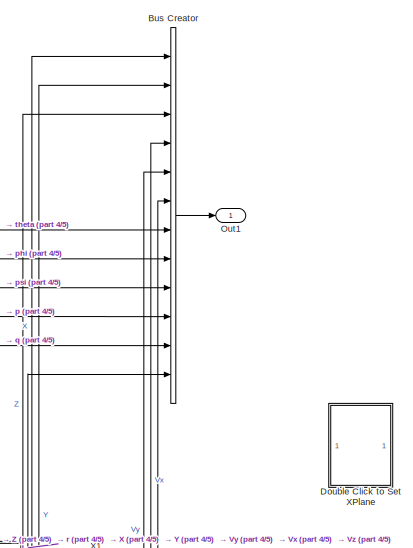
[diagram: root canvas - part 1/5, top center region]
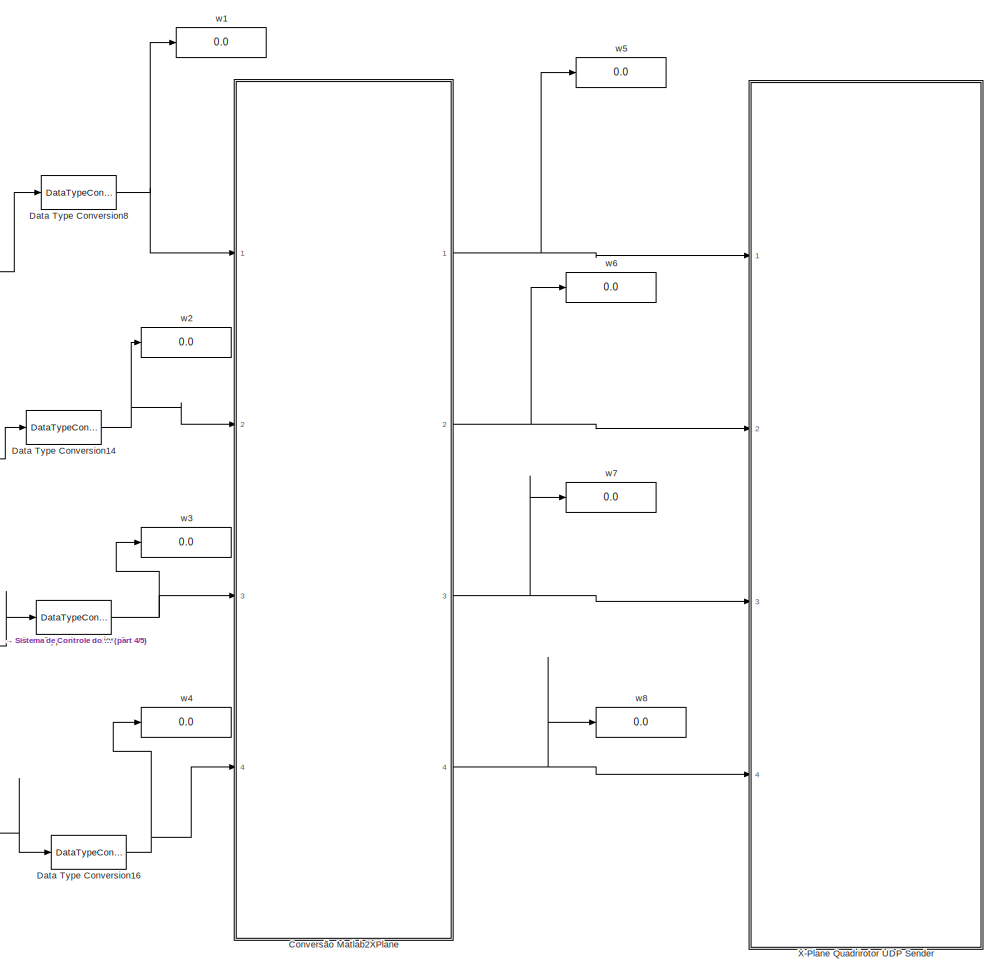
[diagram: root canvas - part 2/5, middle right region]
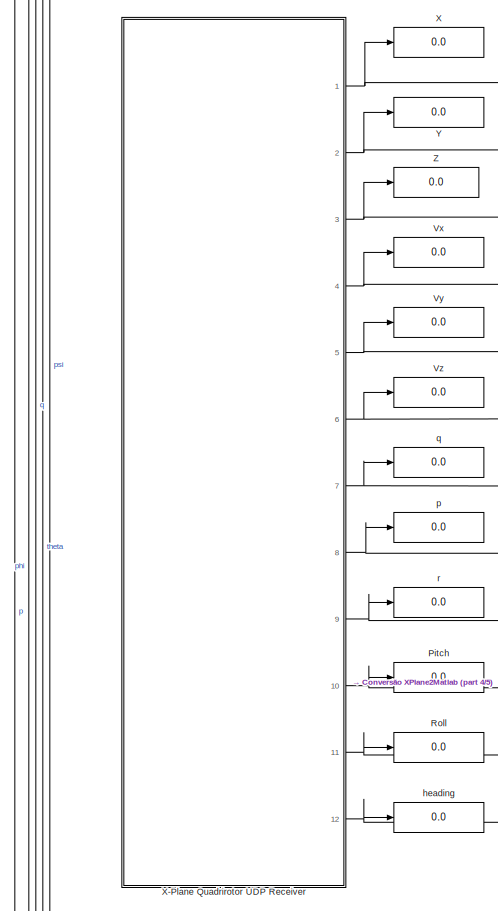
[diagram: root canvas - part 3/5, middle left region]
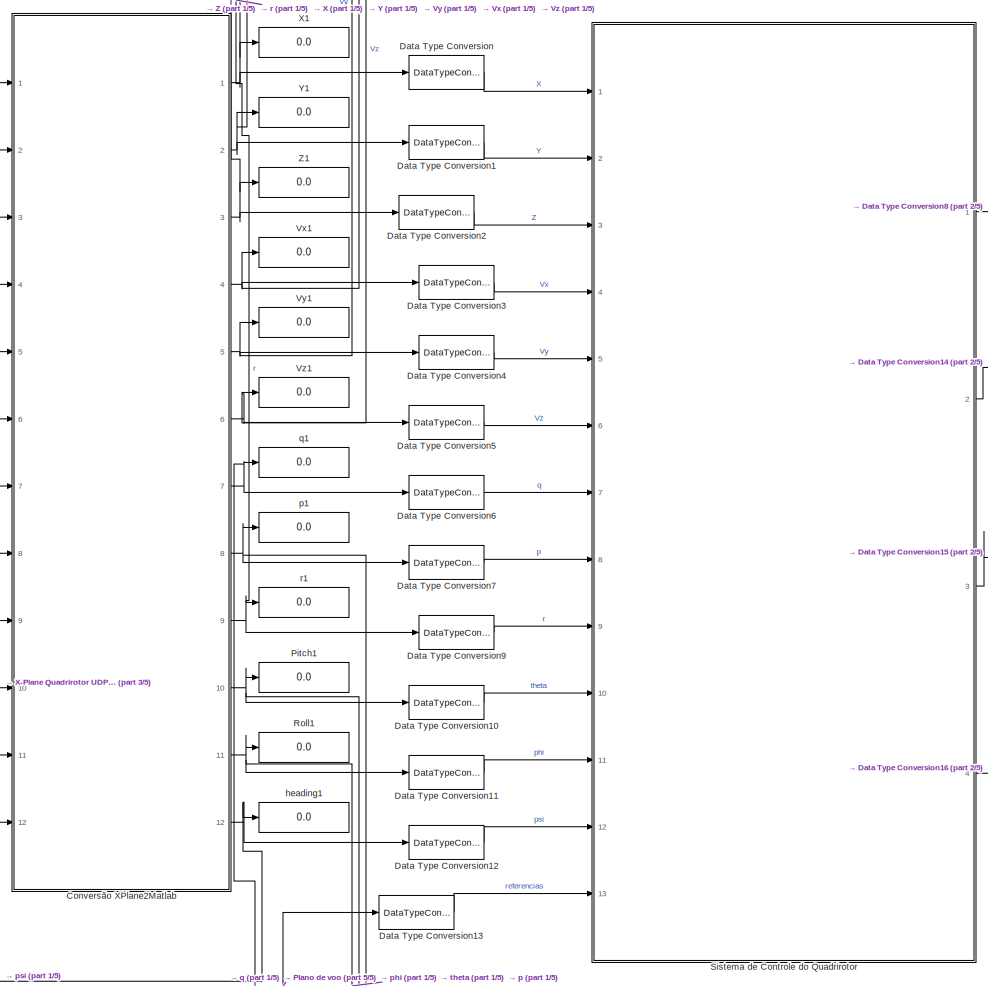
[diagram: root canvas - part 4/5, central region]
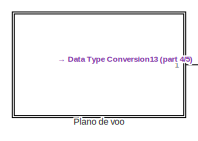
[diagram: root canvas - part 5/5, bottom left region]
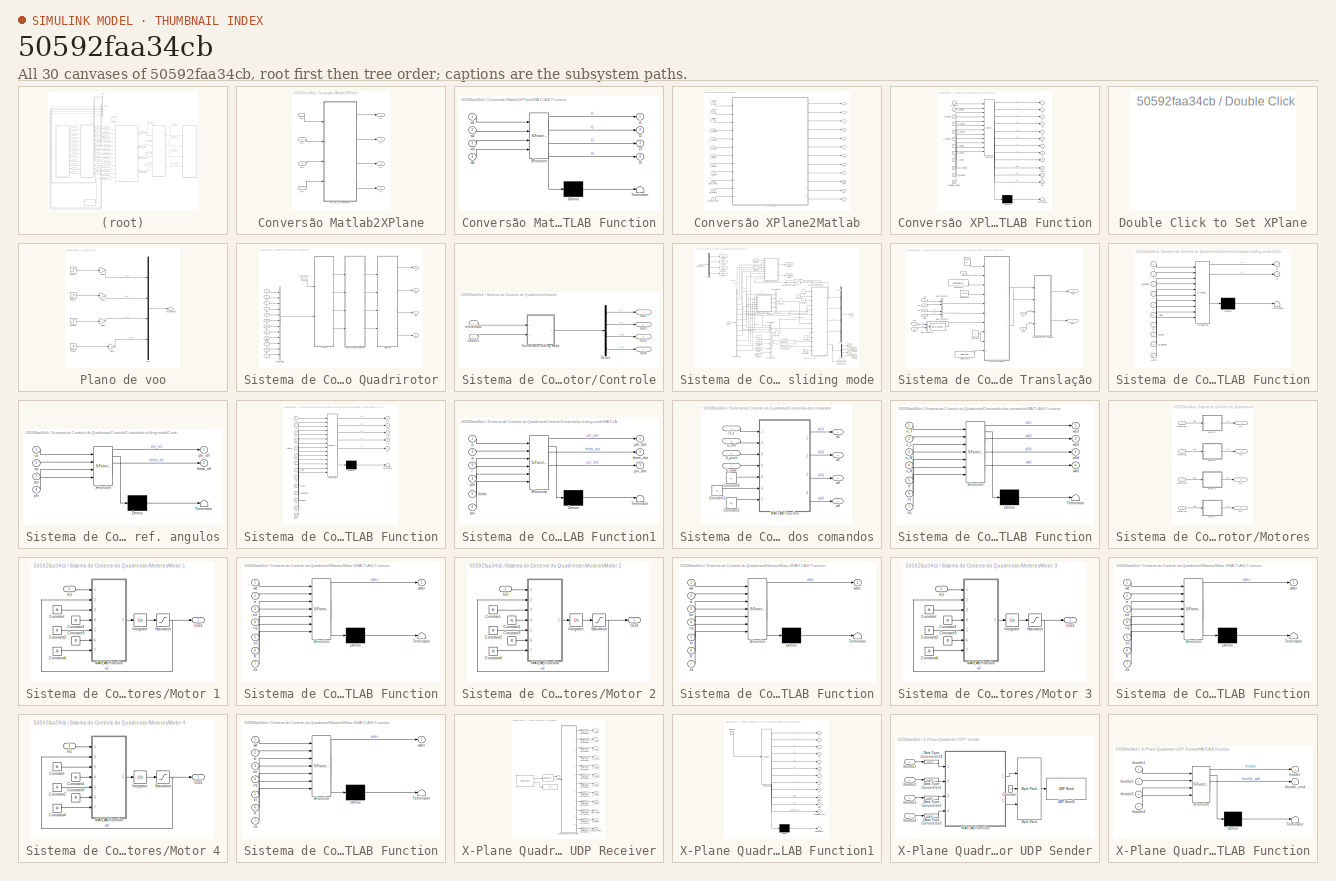
[diagram: thumbnail index - all 30 canvases of the model, root first then tree order]
MODEL slx_50592faa34cb
KIND model
CONFIG AbsTol = auto
CONFIG FixedStep = 0.02
CONFIG MaxStep = auto
CONFIG MinStep = auto
CONFIG RelTol = 1e-3
CONFIG SampleTimeConstraint = Unconstrained
CONFIG Solver = ode3
CONFIG SolverMode = Auto
CONFIG SolverName = ode3
CONFIG StartTime = 0.0
CONFIG StopTime = tempofinal
BLOCK [BusCreator] Bus Creator
  DisplayOption = bar
  Inputs = 12
  Ports = [12, 1]
BLOCK [SubSystem] Conversão Matlab2XPlane
  Ports = [4, 4]
  RequestExecContextInheritance = off
BLOCK [SubSystem] Conversão Matlab2XPlane/MATLAB Function
  ErrorFcn = Stateflow.Translate.translate
  PermitHierarchicalResolution = ExplicitOnly
  Ports = [4, 4]
  RequestExecContextInheritance = off
  SFBlockType = MATLAB Function
  TreatAsAtomicUnit = on
BLOCK [Demux] Conversão Matlab2XPlane/MATLAB Function/ Demux 
  Outputs = 1
  Ports = [1, 1]
BLOCK [S-Function] Conversão Matlab2XPlane/MATLAB Function/ SFunction 
  EnableBusSupport = on
  FunctionName = sf_sfun
  PortCounts = [4 5]
  Ports = [4, 5]
  Tag = Stateflow S-Function SITL_SMC_Code_Gen 13
BLOCK [Terminator] Conversão Matlab2XPlane/MATLAB Function/ Terminator 
BLOCK [Outport] Conversão Matlab2XPlane/MATLAB Function/t1
  IconDisplay = Port number
BLOCK [Outport] Conversão Matlab2XPlane/MATLAB Function/t2
  IconDisplay = Port number
  Port = 2
BLOCK [Outport] Conversão Matlab2XPlane/MATLAB Function/t3
  IconDisplay = Port number
  Port = 3
BLOCK [Outport] Conversão Matlab2XPlane/MATLAB Function/t4
  IconDisplay = Port number
  Port = 4
BLOCK [Inport] Conversão Matlab2XPlane/MATLAB Function/w1
  IconDisplay = Port number
BLOCK [Inport] Conversão Matlab2XPlane/MATLAB Function/w2
  IconDisplay = Port number
  Port = 2
BLOCK [Inport] Conversão Matlab2XPlane/MATLAB Function/w3
  IconDisplay = Port number
  Port = 3
BLOCK [Inport] Conversão Matlab2XPlane/MATLAB Function/w4
  IconDisplay = Port number
  Port = 4
BLOCK [Outport] Conversão Matlab2XPlane/t1
  IconDisplay = Port number
BLOCK [Outport] Conversão Matlab2XPlane/t2
  IconDisplay = Port number
  Port = 2
BLOCK [Outport] Conversão Matlab2XPlane/t3
  IconDisplay = Port number
  Port = 3
BLOCK [Outport] Conversão Matlab2XPlane/t4
  IconDisplay = Port number
  Port = 4
BLOCK [Inport] Conversão Matlab2XPlane/w1
  IconDisplay = Port number
BLOCK [Inport] Conversão Matlab2XPlane/w2
  IconDisplay = Port number
  Port = 2
BLOCK [Inport] Conversão Matlab2XPlane/w3
  IconDisplay = Port number
  Port = 3
BLOCK [Inport] Conversão Matlab2XPlane/w4
  IconDisplay = Port number
  Port = 4
BLOCK [SubSystem] Conversão XPlane2Matlab
  Ports = [12, 12]
  RequestExecContextInheritance = off
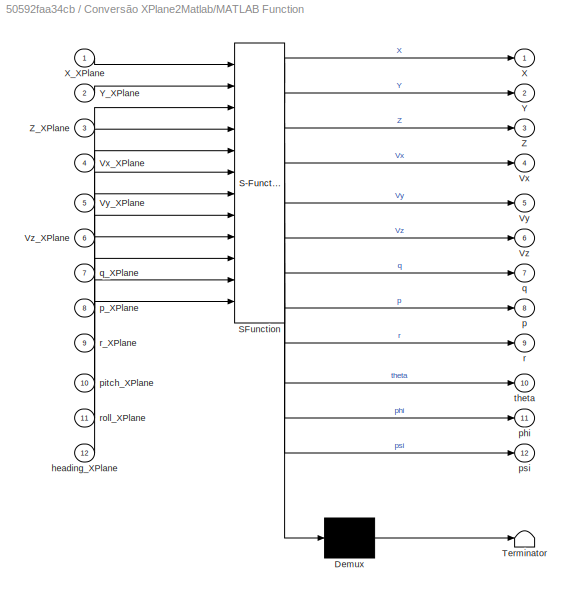
BLOCK [SubSystem] Conversão XPlane2Matlab/MATLAB Function
  ErrorFcn = Stateflow.Translate.translate
  PermitHierarchicalResolution = ExplicitOnly
  Ports = [12, 12]
  RequestExecContextInheritance = off
  SFBlockType = MATLAB Function
  TreatAsAtomicUnit = on
BLOCK [Demux] Conversão XPlane2Matlab/MATLAB Function/ Demux 
  Outputs = 1
  Ports = [1, 1]
BLOCK [S-Function] Conversão XPlane2Matlab/MATLAB Function/ SFunction 
  EnableBusSupport = on
  FunctionName = sf_sfun
  PortCounts = [12 13]
  Ports = [12, 13]
  Tag = Stateflow S-Function SITL_SMC_Code_Gen 14
BLOCK [Terminator] Conversão XPlane2Matlab/MATLAB Function/ Terminator 
BLOCK [Outport] Conversão XPlane2Matlab/MATLAB Function/Vx
  IconDisplay = Port number
  Port = 4
BLOCK [Inport] Conversão XPlane2Matlab/MATLAB Function/Vx_XPlane
  IconDisplay = Port number
  Port = 4
BLOCK [Outport] Conversão XPlane2Matlab/MATLAB Function/Vy
  IconDisplay = Port number
  Port = 5
BLOCK [Inport] Conversão XPlane2Matlab/MATLAB Function/Vy_XPlane
  IconDisplay = Port number
  Port = 5
BLOCK [Outport] Conversão XPlane2Matlab/MATLAB Function/Vz
  IconDisplay = Port number
  Port = 6
BLOCK [Inport] Conversão XPlane2Matlab/MATLAB Function/Vz_XPlane
  IconDisplay = Port number
  Port = 6
BLOCK [Outport] Conversão XPlane2Matlab/MATLAB Function/X
  IconDisplay = Port number
BLOCK [Inport] Conversão XPlane2Matlab/MATLAB Function/X_XPlane
  IconDisplay = Port number
BLOCK [Outport] Conversão XPlane2Matlab/MATLAB Function/Y
  IconDisplay = Port number
  Port = 2
BLOCK [Inport] Conversão XPlane2Matlab/MATLAB Function/Y_XPlane
  IconDisplay = Port number
  Port = 2
BLOCK [Outport] Conversão XPlane2Matlab/MATLAB Function/Z
  IconDisplay = Port number
  Port = 3
BLOCK [Inport] Conversão XPlane2Matlab/MATLAB Function/Z_XPlane
  IconDisplay = Port number
  Port = 3
BLOCK [Inport] Conversão XPlane2Matlab/MATLAB Function/heading_XPlane
  IconDisplay = Port number
  Port = 12
BLOCK [Outport] Conversão XPlane2Matlab/MATLAB Function/p
  IconDisplay = Port number
  Port = 8
BLOCK [Inport] Conversão XPlane2Matlab/MATLAB Function/p_XPlane
  IconDisplay = Port number
  Port = 8
BLOCK [Outport] Conversão XPlane2Matlab/MATLAB Function/phi
  IconDisplay = Port number
  Port = 11
BLOCK [Inport] Conversão XPlane2Matlab/MATLAB Function/pitch_XPlane
  IconDisplay = Port number
  Port = 10
BLOCK [Outport] Conversão XPlane2Matlab/MATLAB Function/psi
  IconDisplay = Port number
  Port = 12
BLOCK [Outport] Conversão XPlane2Matlab/MATLAB Function/q
  IconDisplay = Port number
  Port = 7
BLOCK [Inport] Conversão XPlane2Matlab/MATLAB Function/q_XPlane
  IconDisplay = Port number
  Port = 7
BLOCK [Outport] Conversão XPlane2Matlab/MATLAB Function/r
  IconDisplay = Port number
  Port = 9
BLOCK [Inport] Conversão XPlane2Matlab/MATLAB Function/r_XPlane
  IconDisplay = Port number
  Port = 9
BLOCK [Inport] Conversão XPlane2Matlab/MATLAB Function/roll_XPlane
  IconDisplay = Port number
  Port = 11
BLOCK [Outport] Conversão XPlane2Matlab/MATLAB Function/theta
  IconDisplay = Port number
  Port = 10
BLOCK [Outport] Conversão XPlane2Matlab/Vx
  IconDisplay = Port number
  Port = 4
BLOCK [Inport] Conversão XPlane2Matlab/Vx_XPlane
  IconDisplay = Port number
  Port = 4
BLOCK [Outport] Conversão XPlane2Matlab/Vy
  IconDisplay = Port number
  Port = 5
BLOCK [Inport] Conversão XPlane2Matlab/Vy_XPlane
  IconDisplay = Port number
  Port = 5
BLOCK [Outport] Conversão XPlane2Matlab/Vz
  IconDisplay = Port number
  Port = 6
BLOCK [Inport] Conversão XPlane2Matlab/Vz_XPlane
  IconDisplay = Port number
  Port = 6
BLOCK [Outport] Conversão XPlane2Matlab/X 
  IconDisplay = Port number
BLOCK [Inport] Conversão XPlane2Matlab/X_XPlane
  IconDisplay = Port number
BLOCK [Outport] Conversão XPlane2Matlab/Y
  IconDisplay = Port number
  Port = 2
BLOCK [Inport] Conversão XPlane2Matlab/Y_XPlane
  IconDisplay = Port number
  Port = 2
BLOCK [Outport] Conversão XPlane2Matlab/Z
  IconDisplay = Port number
  Port = 3
BLOCK [Inport] Conversão XPlane2Matlab/Z_XPlane
  IconDisplay = Port number
  Port = 3
BLOCK [Inport] Conversão XPlane2Matlab/heading_XPlane
  IconDisplay = Port number
  Port = 12
BLOCK [Outport] Conversão XPlane2Matlab/p
  IconDisplay = Port number
  Port = 8
BLOCK [Inport] Conversão XPlane2Matlab/p_XPlane
  IconDisplay = Port number
  Port = 8
BLOCK [Outport] Conversão XPlane2Matlab/phi
  IconDisplay = Port number
  Port = 11
BLOCK [Inport] Conversão XPlane2Matlab/pitch_XPlane
  IconDisplay = Port number
  Port = 10
BLOCK [Outport] Conversão XPlane2Matlab/psi
  IconDisplay = Port number
  Port = 12
BLOCK [Outport] Conversão XPlane2Matlab/q
  IconDisplay = Port number
  Port = 7
BLOCK [Inport] Conversão XPlane2Matlab/q_XPlane
  IconDisplay = Port number
  Port = 7
BLOCK [Outport] Conversão XPlane2Matlab/r
  IconDisplay = Port number
  Port = 9
BLOCK [Inport] Conversão XPlane2Matlab/r_XPlane
  IconDisplay = Port number
  Port = 9
BLOCK [Inport] Conversão XPlane2Matlab/roll_XPlane
  IconDisplay = Port number
  Port = 11
BLOCK [Outport] Conversão XPlane2Matlab/theta
  IconDisplay = Port number
  Port = 10
BLOCK [DataTypeConversion] Data Type Conversion
  OutDataTypeStr = single
  RndMeth = Floor
  SaturateOnIntegerOverflow = off
BLOCK [DataTypeConversion] Data Type Conversion1
  OutDataTypeStr = single
  RndMeth = Floor
  SaturateOnIntegerOverflow = off
BLOCK [DataTypeConversion] Data Type Conversion10
  OutDataTypeStr = single
  RndMeth = Floor
  SaturateOnIntegerOverflow = off
BLOCK [DataTypeConversion] Data Type Conversion11
  OutDataTypeStr = single
  RndMeth = Floor
  SaturateOnIntegerOverflow = off
BLOCK [DataTypeConversion] Data Type Conversion12
  OutDataTypeStr = single
  RndMeth = Floor
  SaturateOnIntegerOverflow = off
BLOCK [DataTypeConversion] Data Type Conversion13
  OutDataTypeStr = single
  RndMeth = Floor
  SaturateOnIntegerOverflow = off
BLOCK [DataTypeConversion] Data Type Conversion14
  OutDataTypeStr = single
  RndMeth = Floor
  SaturateOnIntegerOverflow = off
BLOCK [DataTypeConversion] Data Type Conversion15
  OutDataTypeStr = single
  RndMeth = Floor
  SaturateOnIntegerOverflow = off
BLOCK [DataTypeConversion] Data Type Conversion16
  OutDataTypeStr = single
  RndMeth = Floor
  SaturateOnIntegerOverflow = off
BLOCK [DataTypeConversion] Data Type Conversion2
  OutDataTypeStr = single
  RndMeth = Floor
  SaturateOnIntegerOverflow = off
BLOCK [DataTypeConversion] Data Type Conversion3
  OutDataTypeStr = single
  RndMeth = Floor
  SaturateOnIntegerOverflow = off
BLOCK [DataTypeConversion] Data Type Conversion4
  OutDataTypeStr = single
  RndMeth = Floor
  SaturateOnIntegerOverflow = off
BLOCK [DataTypeConversion] Data Type Conversion5
  OutDataTypeStr = single
  RndMeth = Floor
  SaturateOnIntegerOverflow = off
BLOCK [DataTypeConversion] Data Type Conversion6
  OutDataTypeStr = single
  RndMeth = Floor
  SaturateOnIntegerOverflow = off
BLOCK [DataTypeConversion] Data Type Conversion7
  OutDataTypeStr = single
  RndMeth = Floor
  SaturateOnIntegerOverflow = off
BLOCK [DataTypeConversion] Data Type Conversion8
  OutDataTypeStr = single
  RndMeth = Floor
  SaturateOnIntegerOverflow = off
BLOCK [DataTypeConversion] Data Type Conversion9
  OutDataTypeStr = single
  RndMeth = Floor
  SaturateOnIntegerOverflow = off
BLOCK [SubSystem] Double Click to Set XPlane
  LoadFcn = selecting_parameters()
  OpenFcn = selecting_parameters()
  Ports = []
  RequestExecContextInheritance = off
BLOCK [Outport] Out1
  IconDisplay = Port number
BLOCK [Display] Pitch
  Decimation = 1
  Ports = [1]
BLOCK [Display] Pitch1
  Decimation = 1
  Ports = [1]
BLOCK [SubSystem] Plano de voo
  Ports = [0, 1]
  RequestExecContextInheritance = off
BLOCK [Gain] Plano de voo/Gain1
  OutDataTypeStr = Inherit: Inherit via internal rule
  ParamDataTypeStr = Inherit: Inherit via internal rule
  SaturateOnIntegerOverflow = off
BLOCK [Gain] Plano de voo/Gain2
  OutDataTypeStr = Inherit: Inherit via internal rule
  ParamDataTypeStr = Inherit: Inherit via internal rule
  SaturateOnIntegerOverflow = off
BLOCK [Gain] Plano de voo/Gain3
  Gain = -1
  OutDataTypeStr = Inherit: Inherit via internal rule
  ParamDataTypeStr = Inherit: Inherit via internal rule
  SaturateOnIntegerOverflow = off
BLOCK [Gain] Plano de voo/Gain4
  OutDataTypeStr = Inherit: Inherit via internal rule
  ParamDataTypeStr = Inherit: Inherit via internal rule
  SaturateOnIntegerOverflow = off
BLOCK [Mux] Plano de voo/Mux
  DisplayOption = bar
  Ports = [4, 1]
BLOCK [Step] Plano de voo/Step1
  After = 150*pi/180
  SampleTime = 0
  Time = 30
BLOCK [Step] Plano de voo/Step2
  After = 6
  SampleTime = 0
  Time = 0
BLOCK [Step] Plano de voo/Step_x
  After = 15
  SampleTime = 0
  Time = 20
BLOCK [Step] Plano de voo/Step_y
  After = 15
  SampleTime = 0
  Time = 10
BLOCK [Outport] Plano de voo/referências 
  IconDisplay = Port number
BLOCK [Display] Roll
  Decimation = 1
  Ports = [1]
BLOCK [Display] Roll1
  Decimation = 1
  Ports = [1]
BLOCK [SubSystem] Sistema de Controle do Quadrirotor
  Ports = [13, 4]
  RequestExecContextInheritance = off
BLOCK [BusCreator] Sistema de Controle do Quadrirotor/Bus Creator
  DisplayOption = bar
  Inputs = 12
  Ports = [12, 1]
BLOCK [SubSystem] Sistema de Controle do Quadrirotor/Controle
  Ports = [2, 4]
  RequestExecContextInheritance = off
BLOCK [SubSystem] Sistema de Controle do Quadrirotor/Controle/Controlador sliding mode
  Ports = [2, 1]
  RequestExecContextInheritance = off
BLOCK [BusCreator] Sistema de Controle do Quadrirotor/Controle/Controlador sliding mode/Bus Creator1
  DisplayOption = bar
  Ports = [4, 1]
BLOCK [BusCreator] Sistema de Controle do Quadrirotor/Controle/Controlador sliding mode/Bus Creator2
  DisplayOption = bar
  Ports = [4, 1]
BLOCK [BusCreator] Sistema de Controle do Quadrirotor/Controle/Controlador sliding mode/Bus Creator3
  DisplayOption = bar
  Ports = [4, 1]
BLOCK [BusSelector] Sistema de Controle do Quadrirotor/Controle/Controlador sliding mode/Bus Selector
  OutputSignals = signal1,signal2,signal3,signal4,signal5,signal6,signal7,signal8,signal9,signal10,signal11,signal12
  Ports = [1, 12]
BLOCK [Constant] Sistema de Controle do Quadrirotor/Controle/Controlador sliding mode/Constant
  Value = g
BLOCK [Constant] Sistema de Controle do Quadrirotor/Controle/Controlador sliding mode/Constant1
  Value = J
BLOCK [Constant] Sistema de Controle do Quadrirotor/Controle/Controlador sliding mode/Constant2
  Value = m
BLOCK [Constant] Sistema de Controle do Quadrirotor/Controle/Controlador sliding mode/Constant3
  Value = [lambda1;lambda2;lambda3;lambda4]
BLOCK [Constant] Sistema de Controle do Quadrirotor/Controle/Controlador sliding mode/Constant4
  Value = [k1;k2;k3;k4]
BLOCK [Constant] Sistema de Controle do Quadrirotor/Controle/Controlador sliding mode/Constant5
  Value = limit
BLOCK [Constant] Sistema de Controle do Quadrirotor/Controle/Controlador sliding mode/Constant6
  Value = 0
BLOCK [SubSystem] Sistema de Controle do Quadrirotor/Controle/Controlador sliding mode/Controle de Translação
  Ports = [9, 2]
  RequestExecContextInheritance = off
BLOCK [BusCreator] Sistema de Controle do Quadrirotor/Controle/Controlador sliding mode/Controle de Translação/Bus Creator1
  DisplayOption = bar
  Inputs = 2
  Ports = [2, 1]
BLOCK [BusCreator] Sistema de Controle do Quadrirotor/Controle/Controlador sliding mode/Controle de Translação/Bus Creator2
  DisplayOption = bar
  Inputs = 2
  Ports = [2, 1]
BLOCK [BusCreator] Sistema de Controle do Quadrirotor/Controle/Controlador sliding mode/Controle de Translação/Bus Creator3
  DisplayOption = bar
  Inputs = 2
  Ports = [2, 1]
BLOCK [Constant] Sistema de Controle do Quadrirotor/Controle/Controlador sliding mode/Controle de Translação/Constant
  Value = m
BLOCK [Constant] Sistema de Controle do Quadrirotor/Controle/Controlador sliding mode/Controle de Translação/Constant1
  Value = [lambda5;lambda6]
BLOCK [Constant] Sistema de Controle do Quadrirotor/Controle/Controlador sliding mode/Controle de Translação/Constant2
  Value = [k5;k6]
BLOCK [Constant] Sistema de Controle do Quadrirotor/Controle/Controlador sliding mode/Controle de Translação/Constant3
  Value = limit_pos
BLOCK [Constant] Sistema de Controle do Quadrirotor/Controle/Controlador sliding mode/Controle de Translação/Constant4
  OutDataTypeStr = single
  Value = 0
BLOCK [DataTypeConversion] Sistema de Controle do Quadrirotor/Controle/Controlador sliding mode/Controle de Translação/Data Type Conversion
  OutDataTypeStr = double
  RndMeth = Floor
  SaturateOnIntegerOverflow = off
BLOCK [Inport] Sistema de Controle do Quadrirotor/Controle/Controlador sliding mode/Controle de Translação/In1
  IconDisplay = Signal name
BLOCK [Inport] Sistema de Controle do Quadrirotor/Controle/Controlador sliding mode/Controle de Translação/In2
  IconDisplay = Signal name
  Port = 2
BLOCK [Inport] Sistema de Controle do Quadrirotor/Controle/Controlador sliding mode/Controle de Translação/In3
  IconDisplay = Signal name
  Port = 3
BLOCK [Inport] Sistema de Controle do Quadrirotor/Controle/Controlador sliding mode/Controle de Translação/In4
  IconDisplay = Signal name
  Port = 4
BLOCK [Inport] Sistema de Controle do Quadrirotor/Controle/Controlador sliding mode/Controle de Translação/In5
  IconDisplay = Signal name
  Port = 5
BLOCK [Inport] Sistema de Controle do Quadrirotor/Controle/Controlador sliding mode/Controle de Translação/In6
  IconDisplay = Signal name
  Port = 6
BLOCK [Inport] Sistema de Controle do Quadrirotor/Controle/Controlador sliding mode/Controle de Translação/In7
  IconDisplay = Signal name
  Port = 7
BLOCK [Inport] Sistema de Controle do Quadrirotor/Controle/Controlador sliding mode/Controle de Translação/In8
  IconDisplay = Signal name
  Port = 8
BLOCK [Inport] Sistema de Controle do Quadrirotor/Controle/Controlador sliding mode/Controle de Translação/In9
  IconDisplay = Signal name
  Port = 9
BLOCK [SubSystem] Sistema de Controle do Quadrirotor/Controle/Controlador sliding mode/Controle de Translação/MATLAB Function
  ErrorFcn = Stateflow.Translate.translate
  PermitHierarchicalResolution = ExplicitOnly
  Ports = [10, 2]
  RequestExecContextInheritance = off
  SFBlockType = MATLAB Function
  TreatAsAtomicUnit = on
BLOCK [Demux] Sistema de Controle do Quadrirotor/Controle/Controlador sliding mode/Controle de Translação/MATLAB Function/ Demux 
  Outputs = 1
  Ports = [1, 1]
BLOCK [S-Function] Sistema de Controle do Quadrirotor/Controle/Controlador sliding mode/Controle de Translação/MATLAB Function/ SFunction 
  EnableBusSupport = on
  FunctionName = sf_sfun
  PortCounts = [10 3]
  Ports = [10, 3]
  Tag = Stateflow S-Function SITL_SMC_Code_Gen 11
BLOCK [Terminator] Sistema de Controle do Quadrirotor/Controle/Controlador sliding mode/Controle de Translação/MATLAB Function/ Terminator 
BLOCK [Inport] Sistema de Controle do Quadrirotor/Controle/Controlador sliding mode/Controle de Translação/MATLAB Function/T
  IconDisplay = Port number
  Port = 2
BLOCK [Inport] Sistema de Controle do Quadrirotor/Controle/Controlador sliding mode/Controle de Translação/MATLAB Function/k
  IconDisplay = Port number
  Port = 4
BLOCK [Inport] Sistema de Controle do Quadrirotor/Controle/Controlador sliding mode/Controle de Translação/MATLAB Function/lambda
  IconDisplay = Port number
  Port = 3
BLOCK [Inport] Sistema de Controle do Quadrirotor/Controle/Controlador sliding mode/Controle de Translação/MATLAB Function/limit
  IconDisplay = Port number
  Port = 10
BLOCK [Inport] Sistema de Controle do Quadrirotor/Controle/Controlador sliding mode/Controle de Translação/MATLAB Function/m
  IconDisplay = Port number
BLOCK [Outport] Sistema de Controle do Quadrirotor/Controle/Controlador sliding mode/Controle de Translação/MATLAB Function/ux
  IconDisplay = Port number
BLOCK [Outport] Sistema de Controle do Quadrirotor/Controle/Controlador sliding mode/Controle de Translação/MATLAB Function/uy
  IconDisplay = Port number
  Port = 2
BLOCK [Inport] Sistema de Controle do Quadrirotor/Controle/Controlador sliding mode/Controle de Translação/MATLAB Function/y
  IconDisplay = Port number
  Port = 5
BLOCK [Inport] Sistema de Controle do Quadrirotor/Controle/Controlador sliding mode/Controle de Translação/MATLAB Function/y_dot
  IconDisplay = Port number
  Port = 6
BLOCK [Inport] Sistema de Controle do Quadrirotor/Controle/Controlador sliding mode/Controle de Translação/MATLAB Function/yd
  IconDisplay = Port number
  Port = 7
BLOCK [Inport] Sistema de Controle do Quadrirotor/Controle/Controlador sliding mode/Controle de Translação/MATLAB Function/yd_dot
  IconDisplay = Port number
  Port = 8
BLOCK [Inport] Sistema de Controle do Quadrirotor/Controle/Controlador sliding mode/Controle de Translação/MATLAB Function/yd_dotdot
  IconDisplay = Port number
  Port = 9
BLOCK [Outport] Sistema de Controle do Quadrirotor/Controle/Controlador sliding mode/Controle de Translação/Out1
  IconDisplay = Signal name
BLOCK [Outport] Sistema de Controle do Quadrirotor/Controle/Controlador sliding mode/Controle de Translação/Out2
  IconDisplay = Signal name
  Port = 2
BLOCK [SubSystem] Sistema de Controle do Quadrirotor/Controle/Controlador sliding mode/Controle de Translação/conversao ref. angulos
  ErrorFcn = Stateflow.Translate.translate
  PermitHierarchicalResolution = ExplicitOnly
  Ports = [4, 2]
  RequestExecContextInheritance = off
  SFBlockType = MATLAB Function
  TreatAsAtomicUnit = on
BLOCK [Demux] Sistema de Controle do Quadrirotor/Controle/Controlador sliding mode/Controle de Translação/conversao ref. angulos/ Demux 
  Outputs = 1
  Ports = [1, 1]
BLOCK [S-Function] Sistema de Controle do Quadrirotor/Controle/Controlador sliding mode/Controle de Translação/conversao ref. angulos/ SFunction 
  EnableBusSupport = on
  FunctionName = sf_sfun
  PortCounts = [4 3]
  Ports = [4, 3]
  Tag = Stateflow S-Function SITL_SMC_Code_Gen 10
BLOCK [Terminator] Sistema de Controle do Quadrirotor/Controle/Controlador sliding mode/Controle de Translação/conversao ref. angulos/ Terminator 
BLOCK [Inport] Sistema de Controle do Quadrirotor/Controle/Controlador sliding mode/Controle de Translação/conversao ref. angulos/phi
  IconDisplay = Port number
  Port = 4
BLOCK [Outport] Sistema de Controle do Quadrirotor/Controle/Controlador sliding mode/Controle de Translação/conversao ref. angulos/phi_ref
  IconDisplay = Port number
BLOCK [Inport] Sistema de Controle do Quadrirotor/Controle/Controlador sliding mode/Controle de Translação/conversao ref. angulos/psi
  IconDisplay = Port number
  Port = 3
BLOCK [Outport] Sistema de Controle do Quadrirotor/Controle/Controlador sliding mode/Controle de Translação/conversao ref. angulos/theta_ref
  IconDisplay = Port number
  Port = 2
BLOCK [Inport] Sistema de Controle do Quadrirotor/Controle/Controlador sliding mode/Controle de Translação/conversao ref. angulos/ux
  IconDisplay = Port number
BLOCK [Inport] Sistema de Controle do Quadrirotor/Controle/Controlador sliding mode/Controle de Translação/conversao ref. angulos/uy
  IconDisplay = Port number
  Port = 2
BLOCK [DataTypeConversion] Sistema de Controle do Quadrirotor/Controle/Controlador sliding mode/Data Type Conversion
  OutDataTypeStr = double
  RndMeth = Floor
  SaturateOnIntegerOverflow = off
BLOCK [DataTypeConversion] Sistema de Controle do Quadrirotor/Controle/Controlador sliding mode/Data Type Conversion1
  OutDataTypeStr = single
  RndMeth = Floor
  SaturateOnIntegerOverflow = off
BLOCK [Demux] Sistema de Controle do Quadrirotor/Controle/Controlador sliding mode/Demux
  DisplayOption = bar
  Ports = [1, 4]
BLOCK [Demux] Sistema de Controle do Quadrirotor/Controle/Controlador sliding mode/Demux1
  DisplayOption = bar
  Ports = [1, 4]
BLOCK [Inport] Sistema de Controle do Quadrirotor/Controle/Controlador sliding mode/Estados
  IconDisplay = Port number
  Port = 2
BLOCK [From] Sistema de Controle do Quadrirotor/Controle/Controlador sliding mode/From
  GotoTag = ref_Z
BLOCK [From] Sistema de Controle do Quadrirotor/Controle/Controlador sliding mode/From1
  GotoTag = ref_psi
BLOCK [From] Sistema de Controle do Quadrirotor/Controle/Controlador sliding mode/From2
  GotoTag = ref_X
BLOCK [From] Sistema de Controle do Quadrirotor/Controle/Controlador sliding mode/From3
  GotoTag = ref_Y
BLOCK [From] Sistema de Controle do Quadrirotor/Controle/Controlador sliding mode/From4
  GotoTag = ref_theta
BLOCK [From] Sistema de Controle do Quadrirotor/Controle/Controlador sliding mode/From5
  GotoTag = ref_phi
BLOCK [Goto] Sistema de Controle do Quadrirotor/Controle/Controlador sliding mode/Goto1
  GotoTag = ref_Z
BLOCK [Goto] Sistema de Controle do Quadrirotor/Controle/Controlador sliding mode/Goto2
  GotoTag = ref_X
BLOCK [Goto] Sistema de Controle do Quadrirotor/Controle/Controlador sliding mode/Goto3
  GotoTag = ref_Y
BLOCK [Goto] Sistema de Controle do Quadrirotor/Controle/Controlador sliding mode/Goto4
  GotoTag = ref_psi
BLOCK [Goto] Sistema de Controle do Quadrirotor/Controle/Controlador sliding mode/Goto5
  GotoTag = ref_phi
BLOCK [Goto] Sistema de Controle do Quadrirotor/Controle/Controlador sliding mode/Goto6
  GotoTag = ref_theta
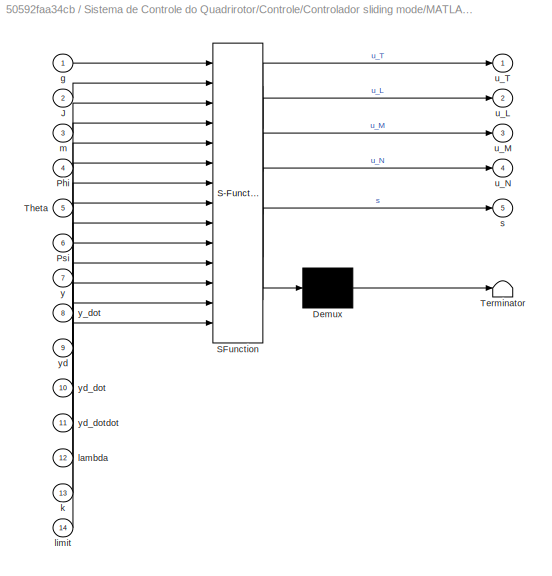
BLOCK [SubSystem] Sistema de Controle do Quadrirotor/Controle/Controlador sliding mode/MATLAB Function
  ErrorFcn = Stateflow.Translate.translate
  PermitHierarchicalResolution = ExplicitOnly
  Ports = [14, 5]
  RequestExecContextInheritance = off
  SFBlockType = MATLAB Function
  TreatAsAtomicUnit = on
BLOCK [Demux] Sistema de Controle do Quadrirotor/Controle/Controlador sliding mode/MATLAB Function/ Demux 
  Outputs = 1
  Ports = [1, 1]
BLOCK [S-Function] Sistema de Controle do Quadrirotor/Controle/Controlador sliding mode/MATLAB Function/ SFunction 
  EnableBusSupport = on
  FunctionName = sf_sfun
  PortCounts = [14 6]
  Ports = [14, 6]
  Tag = Stateflow S-Function SITL_SMC_Code_Gen 8
BLOCK [Terminator] Sistema de Controle do Quadrirotor/Controle/Controlador sliding mode/MATLAB Function/ Terminator 
BLOCK [Inport] Sistema de Controle do Quadrirotor/Controle/Controlador sliding mode/MATLAB Function/J
  IconDisplay = Port number
  Port = 2
BLOCK [Inport] Sistema de Controle do Quadrirotor/Controle/Controlador sliding mode/MATLAB Function/Phi
  IconDisplay = Port number
  Port = 4
BLOCK [Inport] Sistema de Controle do Quadrirotor/Controle/Controlador sliding mode/MATLAB Function/Psi
  IconDisplay = Port number
  Port = 6
BLOCK [Inport] Sistema de Controle do Quadrirotor/Controle/Controlador sliding mode/MATLAB Function/Theta
  IconDisplay = Port number
  Port = 5
BLOCK [Inport] Sistema de Controle do Quadrirotor/Controle/Controlador sliding mode/MATLAB Function/g
  IconDisplay = Port number
BLOCK [Inport] Sistema de Controle do Quadrirotor/Controle/Controlador sliding mode/MATLAB Function/k
  IconDisplay = Port number
  Port = 13
BLOCK [Inport] Sistema de Controle do Quadrirotor/Controle/Controlador sliding mode/MATLAB Function/lambda
  IconDisplay = Port number
  Port = 12
BLOCK [Inport] Sistema de Controle do Quadrirotor/Controle/Controlador sliding mode/MATLAB Function/limit
  IconDisplay = Port number
  Port = 14
BLOCK [Inport] Sistema de Controle do Quadrirotor/Controle/Controlador sliding mode/MATLAB Function/m
  IconDisplay = Port number
  Port = 3
BLOCK [Outport] Sistema de Controle do Quadrirotor/Controle/Controlador sliding mode/MATLAB Function/s
  IconDisplay = Port number
  Port = 5
BLOCK [Outport] Sistema de Controle do Quadrirotor/Controle/Controlador sliding mode/MATLAB Function/u_L
  IconDisplay = Port number
  Port = 2
BLOCK [Outport] Sistema de Controle do Quadrirotor/Controle/Controlador sliding mode/MATLAB Function/u_M
  IconDisplay = Port number
  Port = 3
BLOCK [Outport] Sistema de Controle do Quadrirotor/Controle/Controlador sliding mode/MATLAB Function/u_N
  IconDisplay = Port number
  Port = 4
BLOCK [Outport] Sistema de Controle do Quadrirotor/Controle/Controlador sliding mode/MATLAB Function/u_T
  IconDisplay = Port number
BLOCK [Inport] Sistema de Controle do Quadrirotor/Controle/Controlador sliding mode/MATLAB Function/y
  IconDisplay = Port number
  Port = 7
BLOCK [Inport] Sistema de Controle do Quadrirotor/Controle/Controlador sliding mode/MATLAB Function/y_dot
  IconDisplay = Port number
  Port = 8
BLOCK [Inport] Sistema de Controle do Quadrirotor/Controle/Controlador sliding mode/MATLAB Function/yd
  IconDisplay = Port number
  Port = 9
BLOCK [Inport] Sistema de Controle do Quadrirotor/Controle/Controlador sliding mode/MATLAB Function/yd_dot
  IconDisplay = Port number
  Port = 10
BLOCK [Inport] Sistema de Controle do Quadrirotor/Controle/Controlador sliding mode/MATLAB Function/yd_dotdot
  IconDisplay = Port number
  Port = 11
BLOCK [SubSystem] Sistema de Controle do Quadrirotor/Controle/Controlador sliding mode/MATLAB Function1
  ErrorFcn = Stateflow.Translate.translate
  PermitHierarchicalResolution = ExplicitOnly
  Ports = [6, 3]
  RequestExecContextInheritance = off
  SFBlockType = MATLAB Function
  TreatAsAtomicUnit = on
BLOCK [Demux] Sistema de Controle do Quadrirotor/Controle/Controlador sliding mode/MATLAB Function1/ Demux 
  Outputs = 1
  Ports = [1, 1]
BLOCK [S-Function] Sistema de Controle do Quadrirotor/Controle/Controlador sliding mode/MATLAB Function1/ SFunction 
  EnableBusSupport = on
  FunctionName = sf_sfun
  PortCounts = [6 4]
  Ports = [6, 4]
  Tag = Stateflow S-Function SITL_SMC_Code_Gen 9
BLOCK [Terminator] Sistema de Controle do Quadrirotor/Controle/Controlador sliding mode/MATLAB Function1/ Terminator 
BLOCK [Inport] Sistema de Controle do Quadrirotor/Controle/Controlador sliding mode/MATLAB Function1/p
  IconDisplay = Port number
BLOCK [Inport] Sistema de Controle do Quadrirotor/Controle/Controlador sliding mode/MATLAB Function1/phi
  IconDisplay = Port number
  Port = 4
BLOCK [Outport] Sistema de Controle do Quadrirotor/Controle/Controlador sliding mode/MATLAB Function1/phi_dot
  IconDisplay = Port number
BLOCK [Inport] Sistema de Controle do Quadrirotor/Controle/Controlador sliding mode/MATLAB Function1/psi
  IconDisplay = Port number
  Port = 6
BLOCK [Outport] Sistema de Controle do Quadrirotor/Controle/Controlador sliding mode/MATLAB Function1/psi_dot
  IconDisplay = Port number
  Port = 3
BLOCK [Inport] Sistema de Controle do Quadrirotor/Controle/Controlador sliding mode/MATLAB Function1/q
  IconDisplay = Port number
  Port = 2
BLOCK [Inport] Sistema de Controle do Quadrirotor/Controle/Controlador sliding mode/MATLAB Function1/r
  IconDisplay = Port number
  Port = 3
BLOCK [Inport] Sistema de Controle do Quadrirotor/Controle/Controlador sliding mode/MATLAB Function1/theta
  IconDisplay = Port number
  Port = 5
BLOCK [Outport] Sistema de Controle do Quadrirotor/Controle/Controlador sliding mode/MATLAB Function1/theta_dot
  IconDisplay = Port number
  Port = 2
BLOCK [Mux] Sistema de Controle do Quadrirotor/Controle/Controlador sliding mode/Mux2
  DisplayOption = bar
  Ports = [4, 1]
BLOCK [Outport] Sistema de Controle do Quadrirotor/Controle/Controlador sliding mode/Out1
  IconDisplay = Signal name
BLOCK [Inport] Sistema de Controle do Quadrirotor/Controle/Controlador sliding mode/Referências
  IconDisplay = Port number
BLOCK [Reshape] Sistema de Controle do Quadrirotor/Controle/Controlador sliding mode/Reshape
  OutputDimensionality = Customize
  OutputDimensions = [4,1]
  Ports = [1, 1]
BLOCK [Reshape] Sistema de Controle do Quadrirotor/Controle/Controlador sliding mode/Reshape1
  OutputDimensionality = Customize
  OutputDimensions = [4,1]
  Ports = [1, 1]
BLOCK [Scope] Sistema de Controle do Quadrirotor/Controle/Controlador sliding mode/Scope
  DataFormat = StructureWithTime
  Floating = off
  NumInputPorts = 1
  Ports = [1]
  SampleTime = 0
  TimeRange = 100
  YMin = -1
  ZoomMode = xonly
BLOCK [Scope] Sistema de Controle do Quadrirotor/Controle/Controlador sliding mode/Scope1
  DataFormat = StructureWithTime
  Floating = off
  NumInputPorts = 1
  Ports = [1]
  SampleTime = 0
  SaveName = ScopeData4
  TimeRange = 100
  YMin = -1
  ZoomMode = xonly
BLOCK [Scope] Sistema de Controle do Quadrirotor/Controle/Controlador sliding mode/Scope2
  DataFormat = StructureWithTime
  Floating = off
  NumInputPorts = 1
  Ports = [1]
  SampleTime = 0
  SaveName = ScopeData5
  TimeRange = 100
  YMin = -1
  ZoomMode = xonly
BLOCK [Scope] Sistema de Controle do Quadrirotor/Controle/Controlador sliding mode/Scope3
  DataFormat = StructureWithTime
  Floating = off
  NumInputPorts = 1
  Ports = [1]
  SampleTime = 0
  SaveName = ScopeData6
  TimeRange = 100
  YMin = -1
  ZoomMode = xonly
BLOCK [ToWorkspace] Sistema de Controle do Quadrirotor/Controle/Controlador sliding mode/To Workspace
  MaxDataPoints = inf
  Ports = [1]
  SampleTime = -1
  VariableName = funcao_chav
BLOCK [TransportDelay] Sistema de Controle do Quadrirotor/Controle/Controlador sliding mode/Transport Delay
  DelayTime = 0.01
  InitialOutput = m*g
  Ports = [1, 1]
BLOCK [Demux] Sistema de Controle do Quadrirotor/Controle/Demux
  DisplayOption = bar
  Ports = [1, 4]
BLOCK [Outport] Sistema de Controle do Quadrirotor/Controle/Out1
  IconDisplay = Signal name
BLOCK [Outport] Sistema de Controle do Quadrirotor/Controle/Out2
  IconDisplay = Signal name
  Port = 2
BLOCK [Outport] Sistema de Controle do Quadrirotor/Controle/Out3
  IconDisplay = Signal name
  Port = 3
BLOCK [Outport] Sistema de Controle do Quadrirotor/Controle/Out4
  IconDisplay = Signal name
  Port = 4
BLOCK [Inport] Sistema de Controle do Quadrirotor/Controle/estados
  IconDisplay = Port number
  Port = 2
BLOCK [Inport] Sistema de Controle do Quadrirotor/Controle/referencias
  IconDisplay = Port number
BLOCK [SubSystem] Sistema de Controle do Quadrirotor/Conversão dos comandos
  Ports = [4, 4]
  RequestExecContextInheritance = off
BLOCK [Constant] Sistema de Controle do Quadrirotor/Conversão dos comandos/Constant1
  Value = ct
BLOCK [Constant] Sistema de Controle do Quadrirotor/Conversão dos comandos/Constant2
  Value = cq
BLOCK [Constant] Sistema de Controle do Quadrirotor/Conversão dos comandos/Constant4
  Value = d
BLOCK [SubSystem] Sistema de Controle do Quadrirotor/Conversão dos comandos/MATLAB Function
  ErrorFcn = Stateflow.Translate.translate
  PermitHierarchicalResolution = ExplicitOnly
  Ports = [7, 4]
  RequestExecContextInheritance = off
  SFBlockType = MATLAB Function
  TreatAsAtomicUnit = on
BLOCK [Demux] Sistema de Controle do Quadrirotor/Conversão dos comandos/MATLAB Function/ Demux 
  Outputs = 1
  Ports = [1, 1]
BLOCK [S-Function] Sistema de Controle do Quadrirotor/Conversão dos comandos/MATLAB Function/ SFunction 
  EnableBusSupport = on
  FunctionName = sf_sfun
  PortCounts = [7 5]
  Ports = [7, 5]
  Tag = Stateflow S-Function SITL_SMC_Code_Gen 2
BLOCK [Terminator] Sistema de Controle do Quadrirotor/Conversão dos comandos/MATLAB Function/ Terminator 
BLOCK [Inport] Sistema de Controle do Quadrirotor/Conversão dos comandos/MATLAB Function/cq
  IconDisplay = Port number
  Port = 7
BLOCK [Inport] Sistema de Controle do Quadrirotor/Conversão dos comandos/MATLAB Function/ct
  IconDisplay = Port number
  Port = 6
BLOCK [Inport] Sistema de Controle do Quadrirotor/Conversão dos comandos/MATLAB Function/d
  IconDisplay = Port number
  Port = 5
BLOCK [Inport] Sistema de Controle do Quadrirotor/Conversão dos comandos/MATLAB Function/u_L
  IconDisplay = Port number
  Port = 2
BLOCK [Inport] Sistema de Controle do Quadrirotor/Conversão dos comandos/MATLAB Function/u_M
  IconDisplay = Port number
  Port = 3
BLOCK [Inport] Sistema de Controle do Quadrirotor/Conversão dos comandos/MATLAB Function/u_N
  IconDisplay = Port number
  Port = 4
BLOCK [Inport] Sistema de Controle do Quadrirotor/Conversão dos comandos/MATLAB Function/u_T
  IconDisplay = Port number
BLOCK [Outport] Sistema de Controle do Quadrirotor/Conversão dos comandos/MATLAB Function/w1d
  IconDisplay = Port number
BLOCK [Outport] Sistema de Controle do Quadrirotor/Conversão dos comandos/MATLAB Function/w2d
  IconDisplay = Port number
  Port = 2
BLOCK [Outport] Sistema de Controle do Quadrirotor/Conversão dos comandos/MATLAB Function/w3d
  IconDisplay = Port number
  Port = 3
BLOCK [Outport] Sistema de Controle do Quadrirotor/Conversão dos comandos/MATLAB Function/w4d
  IconDisplay = Port number
  Port = 4
BLOCK [Inport] Sistema de Controle do Quadrirotor/Conversão dos comandos/U_pitch
  IconDisplay = Signal name
  Port = 3
BLOCK [Inport] Sistema de Controle do Quadrirotor/Conversão dos comandos/U_roll
  IconDisplay = Signal name
  Port = 2
BLOCK [Inport] Sistema de Controle do Quadrirotor/Conversão dos comandos/U_yaw
  IconDisplay = Signal name
  Port = 4
BLOCK [Inport] Sistema de Controle do Quadrirotor/Conversão dos comandos/U_z
  IconDisplay = Signal name
BLOCK [Outport] Sistema de Controle do Quadrirotor/Conversão dos comandos/w1
  IconDisplay = Signal name
BLOCK [Outport] Sistema de Controle do Quadrirotor/Conversão dos comandos/w2
  IconDisplay = Signal name
  Port = 2
BLOCK [Outport] Sistema de Controle do Quadrirotor/Conversão dos comandos/w3
  IconDisplay = Signal name
  Port = 3
BLOCK [Outport] Sistema de Controle do Quadrirotor/Conversão dos comandos/w4
  IconDisplay = Signal name
  Port = 4
BLOCK [SubSystem] Sistema de Controle do Quadrirotor/Motores
  Ports = [4, 4]
  RequestExecContextInheritance = off
BLOCK [SubSystem] Sistema de Controle do Quadrirotor/Motores/Motor 1
  Ports = [1, 1]
  RequestExecContextInheritance = off
BLOCK [Constant] Sistema de Controle do Quadrirotor/Motores/Motor 1/Constant
  Value = ke
BLOCK [Constant] Sistema de Controle do Quadrirotor/Motores/Motor 1/Constant1
  Value = cq
BLOCK [Constant] Sistema de Controle do Quadrirotor/Motores/Motor 1/Constant2
  Value = kt
BLOCK [Constant] Sistema de Controle do Quadrirotor/Motores/Motor 1/Constant3
  Value = R
BLOCK [Constant] Sistema de Controle do Quadrirotor/Motores/Motor 1/Constant4
  Value = Ja
BLOCK [Inport] Sistema de Controle do Quadrirotor/Motores/Motor 1/In1
  IconDisplay = Signal name
BLOCK [Integrator] Sistema de Controle do Quadrirotor/Motores/Motor 1/Integrator
  InitialCondition = w1_0
  Ports = [1, 1]
BLOCK [SubSystem] Sistema de Controle do Quadrirotor/Motores/Motor 1/MATLAB Function
  ErrorFcn = Stateflow.Translate.translate
  PermitHierarchicalResolution = ExplicitOnly
  Ports = [7, 1]
  RequestExecContextInheritance = off
  SFBlockType = MATLAB Function
  TreatAsAtomicUnit = on
BLOCK [Demux] Sistema de Controle do Quadrirotor/Motores/Motor 1/MATLAB Function/ Demux 
  Outputs = 1
  Ports = [1, 1]
BLOCK [S-Function] Sistema de Controle do Quadrirotor/Motores/Motor 1/MATLAB Function/ SFunction 
  EnableBusSupport = on
  FunctionName = sf_sfun
  PortCounts = [7 2]
  Ports = [7, 2]
  Tag = Stateflow S-Function SITL_SMC_Code_Gen 3
BLOCK [Terminator] Sistema de Controle do Quadrirotor/Motores/Motor 1/MATLAB Function/ Terminator 
BLOCK [Inport] Sistema de Controle do Quadrirotor/Motores/Motor 1/MATLAB Function/Ja
  IconDisplay = Port number
  Port = 7
BLOCK [Inport] Sistema de Controle do Quadrirotor/Motores/Motor 1/MATLAB Function/R
  IconDisplay = Port number
  Port = 6
BLOCK [Inport] Sistema de Controle do Quadrirotor/Motores/Motor 1/MATLAB Function/cq
  IconDisplay = Port number
  Port = 4
BLOCK [Inport] Sistema de Controle do Quadrirotor/Motores/Motor 1/MATLAB Function/ke
  IconDisplay = Port number
  Port = 3
BLOCK [Inport] Sistema de Controle do Quadrirotor/Motores/Motor 1/MATLAB Function/kt
  IconDisplay = Port number
  Port = 5
BLOCK [Inport] Sistema de Controle do Quadrirotor/Motores/Motor 1/MATLAB Function/w
  IconDisplay = Port number
  Port = 2
BLOCK [Inport] Sistema de Controle do Quadrirotor/Motores/Motor 1/MATLAB Function/wd
  IconDisplay = Port number
BLOCK [Outport] Sistema de Controle do Quadrirotor/Motores/Motor 1/MATLAB Function/wder
  IconDisplay = Port number
BLOCK [Outport] Sistema de Controle do Quadrirotor/Motores/Motor 1/Out1
  IconDisplay = Signal name
BLOCK [Saturate] Sistema de Controle do Quadrirotor/Motores/Motor 1/Saturation
  InputPortMap = u0
  LowerLimit = 0
  Ports = [1, 1]
  UpperLimit = max_w
BLOCK [SubSystem] Sistema de Controle do Quadrirotor/Motores/Motor 2
  Ports = [1, 1]
  RequestExecContextInheritance = off
BLOCK [Constant] Sistema de Controle do Quadrirotor/Motores/Motor 2/Constant
  Value = ke
BLOCK [Constant] Sistema de Controle do Quadrirotor/Motores/Motor 2/Constant1
  Value = cq
BLOCK [Constant] Sistema de Controle do Quadrirotor/Motores/Motor 2/Constant2
  Value = kt
BLOCK [Constant] Sistema de Controle do Quadrirotor/Motores/Motor 2/Constant3
  Value = R
BLOCK [Constant] Sistema de Controle do Quadrirotor/Motores/Motor 2/Constant4
  Value = Ja
BLOCK [Inport] Sistema de Controle do Quadrirotor/Motores/Motor 2/In1
  IconDisplay = Signal name
BLOCK [Integrator] Sistema de Controle do Quadrirotor/Motores/Motor 2/Integrator
  InitialCondition = w2_0
  Ports = [1, 1]
BLOCK [SubSystem] Sistema de Controle do Quadrirotor/Motores/Motor 2/MATLAB Function
  ErrorFcn = Stateflow.Translate.translate
  PermitHierarchicalResolution = ExplicitOnly
  Ports = [7, 1]
  RequestExecContextInheritance = off
  SFBlockType = MATLAB Function
  TreatAsAtomicUnit = on
BLOCK [Demux] Sistema de Controle do Quadrirotor/Motores/Motor 2/MATLAB Function/ Demux 
  Outputs = 1
  Ports = [1, 1]
BLOCK [S-Function] Sistema de Controle do Quadrirotor/Motores/Motor 2/MATLAB Function/ SFunction 
  EnableBusSupport = on
  FunctionName = sf_sfun
  PortCounts = [7 2]
  Ports = [7, 2]
  Tag = Stateflow S-Function SITL_SMC_Code_Gen 5
BLOCK [Terminator] Sistema de Controle do Quadrirotor/Motores/Motor 2/MATLAB Function/ Terminator 
BLOCK [Inport] Sistema de Controle do Quadrirotor/Motores/Motor 2/MATLAB Function/Ja
  IconDisplay = Port number
  Port = 7
BLOCK [Inport] Sistema de Controle do Quadrirotor/Motores/Motor 2/MATLAB Function/R
  IconDisplay = Port number
  Port = 6
BLOCK [Inport] Sistema de Controle do Quadrirotor/Motores/Motor 2/MATLAB Function/cq
  IconDisplay = Port number
  Port = 4
BLOCK [Inport] Sistema de Controle do Quadrirotor/Motores/Motor 2/MATLAB Function/ke
  IconDisplay = Port number
  Port = 3
BLOCK [Inport] Sistema de Controle do Quadrirotor/Motores/Motor 2/MATLAB Function/kt
  IconDisplay = Port number
  Port = 5
BLOCK [Inport] Sistema de Controle do Quadrirotor/Motores/Motor 2/MATLAB Function/w
  IconDisplay = Port number
  Port = 2
BLOCK [Inport] Sistema de Controle do Quadrirotor/Motores/Motor 2/MATLAB Function/wd
  IconDisplay = Port number
BLOCK [Outport] Sistema de Controle do Quadrirotor/Motores/Motor 2/MATLAB Function/wder
  IconDisplay = Port number
BLOCK [Outport] Sistema de Controle do Quadrirotor/Motores/Motor 2/Out1
  IconDisplay = Signal name
BLOCK [Saturate] Sistema de Controle do Quadrirotor/Motores/Motor 2/Saturation
  InputPortMap = u0
  LowerLimit = 0
  Ports = [1, 1]
  UpperLimit = max_w
BLOCK [SubSystem] Sistema de Controle do Quadrirotor/Motores/Motor 3
  Ports = [1, 1]
  RequestExecContextInheritance = off
BLOCK [Constant] Sistema de Controle do Quadrirotor/Motores/Motor 3/Constant
  Value = ke
BLOCK [Constant] Sistema de Controle do Quadrirotor/Motores/Motor 3/Constant1
  Value = cq
BLOCK [Constant] Sistema de Controle do Quadrirotor/Motores/Motor 3/Constant2
  Value = kt
BLOCK [Constant] Sistema de Controle do Quadrirotor/Motores/Motor 3/Constant3
  Value = R
BLOCK [Constant] Sistema de Controle do Quadrirotor/Motores/Motor 3/Constant4
  Value = Ja
BLOCK [Inport] Sistema de Controle do Quadrirotor/Motores/Motor 3/In1
  IconDisplay = Signal name
BLOCK [Integrator] Sistema de Controle do Quadrirotor/Motores/Motor 3/Integrator
  InitialCondition = w3_0
  Ports = [1, 1]
BLOCK [SubSystem] Sistema de Controle do Quadrirotor/Motores/Motor 3/MATLAB Function
  ErrorFcn = Stateflow.Translate.translate
  PermitHierarchicalResolution = ExplicitOnly
  Ports = [7, 1]
  RequestExecContextInheritance = off
  SFBlockType = MATLAB Function
  TreatAsAtomicUnit = on
BLOCK [Demux] Sistema de Controle do Quadrirotor/Motores/Motor 3/MATLAB Function/ Demux 
  Outputs = 1
  Ports = [1, 1]
BLOCK [S-Function] Sistema de Controle do Quadrirotor/Motores/Motor 3/MATLAB Function/ SFunction 
  EnableBusSupport = on
  FunctionName = sf_sfun
  PortCounts = [7 2]
  Ports = [7, 2]
  Tag = Stateflow S-Function SITL_SMC_Code_Gen 6
BLOCK [Terminator] Sistema de Controle do Quadrirotor/Motores/Motor 3/MATLAB Function/ Terminator 
BLOCK [Inport] Sistema de Controle do Quadrirotor/Motores/Motor 3/MATLAB Function/Ja
  IconDisplay = Port number
  Port = 7
BLOCK [Inport] Sistema de Controle do Quadrirotor/Motores/Motor 3/MATLAB Function/R
  IconDisplay = Port number
  Port = 6
BLOCK [Inport] Sistema de Controle do Quadrirotor/Motores/Motor 3/MATLAB Function/cq
  IconDisplay = Port number
  Port = 4
BLOCK [Inport] Sistema de Controle do Quadrirotor/Motores/Motor 3/MATLAB Function/ke
  IconDisplay = Port number
  Port = 3
BLOCK [Inport] Sistema de Controle do Quadrirotor/Motores/Motor 3/MATLAB Function/kt
  IconDisplay = Port number
  Port = 5
BLOCK [Inport] Sistema de Controle do Quadrirotor/Motores/Motor 3/MATLAB Function/w
  IconDisplay = Port number
  Port = 2
BLOCK [Inport] Sistema de Controle do Quadrirotor/Motores/Motor 3/MATLAB Function/wd
  IconDisplay = Port number
BLOCK [Outport] Sistema de Controle do Quadrirotor/Motores/Motor 3/MATLAB Function/wder
  IconDisplay = Port number
BLOCK [Outport] Sistema de Controle do Quadrirotor/Motores/Motor 3/Out1
  IconDisplay = Signal name
BLOCK [Saturate] Sistema de Controle do Quadrirotor/Motores/Motor 3/Saturation
  InputPortMap = u0
  LowerLimit = 0
  Ports = [1, 1]
  UpperLimit = max_w
BLOCK [SubSystem] Sistema de Controle do Quadrirotor/Motores/Motor 4
  Ports = [1, 1]
  RequestExecContextInheritance = off
BLOCK [Constant] Sistema de Controle do Quadrirotor/Motores/Motor 4/Constant
  Value = ke
BLOCK [Constant] Sistema de Controle do Quadrirotor/Motores/Motor 4/Constant1
  Value = cq
BLOCK [Constant] Sistema de Controle do Quadrirotor/Motores/Motor 4/Constant2
  Value = kt
BLOCK [Constant] Sistema de Controle do Quadrirotor/Motores/Motor 4/Constant3
  Value = R
BLOCK [Constant] Sistema de Controle do Quadrirotor/Motores/Motor 4/Constant4
  Value = Ja
BLOCK [Inport] Sistema de Controle do Quadrirotor/Motores/Motor 4/In1
  IconDisplay = Signal name
BLOCK [Integrator] Sistema de Controle do Quadrirotor/Motores/Motor 4/Integrator
  InitialCondition = w4_0
  Ports = [1, 1]
BLOCK [SubSystem] Sistema de Controle do Quadrirotor/Motores/Motor 4/MATLAB Function
  ErrorFcn = Stateflow.Translate.translate
  PermitHierarchicalResolution = ExplicitOnly
  Ports = [7, 1]
  RequestExecContextInheritance = off
  SFBlockType = MATLAB Function
  TreatAsAtomicUnit = on
BLOCK [Demux] Sistema de Controle do Quadrirotor/Motores/Motor 4/MATLAB Function/ Demux 
  Outputs = 1
  Ports = [1, 1]
BLOCK [S-Function] Sistema de Controle do Quadrirotor/Motores/Motor 4/MATLAB Function/ SFunction 
  EnableBusSupport = on
  FunctionName = sf_sfun
  PortCounts = [7 2]
  Ports = [7, 2]
  Tag = Stateflow S-Function SITL_SMC_Code_Gen 12
BLOCK [Terminator] Sistema de Controle do Quadrirotor/Motores/Motor 4/MATLAB Function/ Terminator 
BLOCK [Inport] Sistema de Controle do Quadrirotor/Motores/Motor 4/MATLAB Function/Ja
  IconDisplay = Port number
  Port = 7
BLOCK [Inport] Sistema de Controle do Quadrirotor/Motores/Motor 4/MATLAB Function/R
  IconDisplay = Port number
  Port = 6
BLOCK [Inport] Sistema de Controle do Quadrirotor/Motores/Motor 4/MATLAB Function/cq
  IconDisplay = Port number
  Port = 4
BLOCK [Inport] Sistema de Controle do Quadrirotor/Motores/Motor 4/MATLAB Function/ke
  IconDisplay = Port number
  Port = 3
BLOCK [Inport] Sistema de Controle do Quadrirotor/Motores/Motor 4/MATLAB Function/kt
  IconDisplay = Port number
  Port = 5
BLOCK [Inport] Sistema de Controle do Quadrirotor/Motores/Motor 4/MATLAB Function/w
  IconDisplay = Port number
  Port = 2
BLOCK [Inport] Sistema de Controle do Quadrirotor/Motores/Motor 4/MATLAB Function/wd
  IconDisplay = Port number
BLOCK [Outport] Sistema de Controle do Quadrirotor/Motores/Motor 4/MATLAB Function/wder
  IconDisplay = Port number
BLOCK [Outport] Sistema de Controle do Quadrirotor/Motores/Motor 4/Out1
  IconDisplay = Signal name
BLOCK [Saturate] Sistema de Controle do Quadrirotor/Motores/Motor 4/Saturation
  InputPortMap = u0
  LowerLimit = 0
  Ports = [1, 1]
  UpperLimit = max_w
BLOCK [Inport] Sistema de Controle do Quadrirotor/Motores/throttle1
  IconDisplay = Signal name
BLOCK [Inport] Sistema de Controle do Quadrirotor/Motores/throttle2
  IconDisplay = Signal name
  Port = 2
BLOCK [Inport] Sistema de Controle do Quadrirotor/Motores/throttle3
  IconDisplay = Signal name
  Port = 3
BLOCK [Inport] Sistema de Controle do Quadrirotor/Motores/throttle4
  IconDisplay = Signal name
  Port = 4
BLOCK [Outport] Sistema de Controle do Quadrirotor/Motores/w1
  IconDisplay = Signal name
BLOCK [Outport] Sistema de Controle do Quadrirotor/Motores/w2
  IconDisplay = Signal name
  Port = 2
BLOCK [Outport] Sistema de Controle do Quadrirotor/Motores/w3
  IconDisplay = Signal name
  Port = 3
BLOCK [Outport] Sistema de Controle do Quadrirotor/Motores/w4
  IconDisplay = Signal name
  Port = 4
BLOCK [Inport] Sistema de Controle do Quadrirotor/Vx
  IconDisplay = Port number
  Port = 4
BLOCK [Inport] Sistema de Controle do Quadrirotor/Vy
  IconDisplay = Port number
  Port = 5
BLOCK [Inport] Sistema de Controle do Quadrirotor/Vz
  IconDisplay = Port number
  Port = 6
BLOCK [Inport] Sistema de Controle do Quadrirotor/X
  IconDisplay = Port number
BLOCK [Inport] Sistema de Controle do Quadrirotor/Y
  IconDisplay = Port number
  Port = 2
BLOCK [Inport] Sistema de Controle do Quadrirotor/Z
  IconDisplay = Port number
  Port = 3
BLOCK [Inport] Sistema de Controle do Quadrirotor/p
  IconDisplay = Port number
  Port = 8
BLOCK [Inport] Sistema de Controle do Quadrirotor/phi
  IconDisplay = Port number
  Port = 11
BLOCK [Inport] Sistema de Controle do Quadrirotor/psi
  IconDisplay = Port number
  Port = 12
BLOCK [Inport] Sistema de Controle do Quadrirotor/q
  IconDisplay = Port number
  Port = 7
BLOCK [Inport] Sistema de Controle do Quadrirotor/r
  IconDisplay = Port number
  Port = 9
BLOCK [Inport] Sistema de Controle do Quadrirotor/referencias
  IconDisplay = Port number
  Port = 13
BLOCK [Inport] Sistema de Controle do Quadrirotor/theta
  IconDisplay = Port number
  Port = 10
BLOCK [Outport] Sistema de Controle do Quadrirotor/w1
  IconDisplay = Port number
BLOCK [Outport] Sistema de Controle do Quadrirotor/w2
  IconDisplay = Port number
  Port = 2
BLOCK [Outport] Sistema de Controle do Quadrirotor/w3
  IconDisplay = Port number
  Port = 3
BLOCK [Outport] Sistema de Controle do Quadrirotor/w4
  IconDisplay = Port number
  Port = 4
BLOCK [Display] Vx
  Decimation = 1
  Ports = [1]
BLOCK [Display] Vx1
  Decimation = 1
  Ports = [1]
BLOCK [Display] Vy
  Decimation = 1
  Ports = [1]
BLOCK [Display] Vy1
  Decimation = 1
  Ports = [1]
BLOCK [Display] Vz
  Decimation = 1
  Ports = [1]
BLOCK [Display] Vz1
  Decimation = 1
  Ports = [1]
BLOCK [Display] X
  Decimation = 1
  Format = long
  Ports = [1]
BLOCK [SubSystem] X-Plane Quadrirotor UDP Receiver
  AncestorBlock = X_Plane_Communication_Library/Fixed Wing/X-Plane Fixed Wing UDP Receiver
  Ports = [0, 12]
  RequestExecContextInheritance = off
BLOCK [Terminator] X-Plane Quadrirotor UDP Receiver/ 
BLOCK [Reference] X-Plane Quadrirotor UDP Receiver/      REF=dspnetwork/UDP Receive
  Ports = [0, 2]
  SourceBlock = dspnetwork/UDP Receive
  SourceType = UDP Receive
  blockPlatform = WINDOWS
  blockingTime = 1
  dims = 113
  isVarSize = off
  localPort = port_number
  localURL = '0.0.0.0'
  recvBufferSize = 8192
  remotePort = -1
  remoteURL = ip_adress
  sampletime = 0.02
  showBlockingTime = on
  signalDatatype = uint8
BLOCK [Reference] X-Plane Quadrirotor UDP Receiver/       REF=etargetslib/Byte Unpack
  Ports = [1, 2]
  SourceBlock = etargetslib/Byte Unpack
  SourceType = Byte Unpack
  byteAlign = 1
  datatypes = {'uint8','single'}
  dimensions = {5,[9,3]}
BLOCK [DataTypeConversion] X-Plane Quadrirotor UDP Receiver/Data Type Conversion10
  OutDataTypeStr = double
  RndMeth = Floor
BLOCK [DataTypeConversion] X-Plane Quadrirotor UDP Receiver/Data Type Conversion11
  OutDataTypeStr = double
  RndMeth = Floor
BLOCK [DataTypeConversion] X-Plane Quadrirotor UDP Receiver/Data Type Conversion12
  OutDataTypeStr = double
  RndMeth = Floor
BLOCK [DataTypeConversion] X-Plane Quadrirotor UDP Receiver/Data Type Conversion14
  OutDataTypeStr = double
  RndMeth = Floor
BLOCK [DataTypeConversion] X-Plane Quadrirotor UDP Receiver/Data Type Conversion2
  OutDataTypeStr = double
  RndMeth = Floor
BLOCK [DataTypeConversion] X-Plane Quadrirotor UDP Receiver/Data Type Conversion3
  OutDataTypeStr = double
  RndMeth = Floor
BLOCK [DataTypeConversion] X-Plane Quadrirotor UDP Receiver/Data Type Conversion4
  OutDataTypeStr = double
  RndMeth = Floor
BLOCK [DataTypeConversion] X-Plane Quadrirotor UDP Receiver/Data Type Conversion5
  OutDataTypeStr = double
  RndMeth = Floor
BLOCK [DataTypeConversion] X-Plane Quadrirotor UDP Receiver/Data Type Conversion6
  OutDataTypeStr = double
  RndMeth = Floor
BLOCK [DataTypeConversion] X-Plane Quadrirotor UDP Receiver/Data Type Conversion7
  OutDataTypeStr = double
  RndMeth = Floor
BLOCK [DataTypeConversion] X-Plane Quadrirotor UDP Receiver/Data Type Conversion8
  OutDataTypeStr = double
  RndMeth = Floor
BLOCK [DataTypeConversion] X-Plane Quadrirotor UDP Receiver/Data Type Conversion9
  OutDataTypeStr = double
  RndMeth = Floor
BLOCK [SubSystem] X-Plane Quadrirotor UDP Receiver/Embedded MATLAB Function1
  ErrorFcn = Stateflow.Translate.translate
  PermitHierarchicalResolution = ExplicitOnly
  Ports = [1, 12]
  RequestExecContextInheritance = off
  SFBlockType = MATLAB Function
  TreatAsAtomicUnit = on
BLOCK [Demux] X-Plane Quadrirotor UDP Receiver/Embedded MATLAB Function1/ Demux 
  Outputs = 1
  Ports = [1, 1]
BLOCK [S-Function] X-Plane Quadrirotor UDP Receiver/Embedded MATLAB Function1/ SFunction 
  EnableBusSupport = on
  FunctionName = sf_sfun
  PortCounts = [1 13]
  Ports = [1, 13]
  Tag = Stateflow S-Function SITL_SMC_Code_Gen 1
BLOCK [Terminator] X-Plane Quadrirotor UDP Receiver/Embedded MATLAB Function1/ Terminator 
BLOCK [Outport] X-Plane Quadrirotor UDP Receiver/Embedded MATLAB Function1/Vx
  IconDisplay = Port number
  Port = 4
BLOCK [Outport] X-Plane Quadrirotor UDP Receiver/Embedded MATLAB Function1/Vy
  IconDisplay = Port number
  Port = 5
BLOCK [Outport] X-Plane Quadrirotor UDP Receiver/Embedded MATLAB Function1/Vz
  IconDisplay = Port number
  Port = 6
BLOCK [Outport] X-Plane Quadrirotor UDP Receiver/Embedded MATLAB Function1/X
  IconDisplay = Port number
BLOCK [Outport] X-Plane Quadrirotor UDP Receiver/Embedded MATLAB Function1/Y
  IconDisplay = Port number
  Port = 2
BLOCK [Outport] X-Plane Quadrirotor UDP Receiver/Embedded MATLAB Function1/Z
  IconDisplay = Port number
  Port = 3
BLOCK [Inport] X-Plane Quadrirotor UDP Receiver/Embedded MATLAB Function1/data_in
  IconDisplay = Port number
BLOCK [Outport] X-Plane Quadrirotor UDP Receiver/Embedded MATLAB Function1/heading_true
  IconDisplay = Port number
  Port = 12
BLOCK [Outport] X-Plane Quadrirotor UDP Receiver/Embedded MATLAB Function1/p
  IconDisplay = Port number
  Port = 8
BLOCK [Outport] X-Plane Quadrirotor UDP Receiver/Embedded MATLAB Function1/pitch
  IconDisplay = Port number
  Port = 10
BLOCK [Outport] X-Plane Quadrirotor UDP Receiver/Embedded MATLAB Function1/q
  IconDisplay = Port number
  Port = 7
BLOCK [Outport] X-Plane Quadrirotor UDP Receiver/Embedded MATLAB Function1/r
  IconDisplay = Port number
  Port = 9
BLOCK [Outport] X-Plane Quadrirotor UDP Receiver/Embedded MATLAB Function1/roll
  IconDisplay = Port number
  Port = 11
BLOCK [Outport] X-Plane Quadrirotor UDP Receiver/Vx_XPlane
  IconDisplay = Port number
  Port = 4
BLOCK [Outport] X-Plane Quadrirotor UDP Receiver/Vy_XPlane
  IconDisplay = Port number
  Port = 5
BLOCK [Outport] X-Plane Quadrirotor UDP Receiver/Vz_XPlane
  IconDisplay = Port number
  Port = 6
BLOCK [Outport] X-Plane Quadrirotor UDP Receiver/X_XPlane 
  IconDisplay = Port number
BLOCK [Outport] X-Plane Quadrirotor UDP Receiver/Y_XPlane
  IconDisplay = Port number
  Port = 2
BLOCK [Outport] X-Plane Quadrirotor UDP Receiver/Z_XPlane
  IconDisplay = Port number
  Port = 3
BLOCK [Outport] X-Plane Quadrirotor UDP Receiver/heading_XPlane
  IconDisplay = Port number
  Port = 12
BLOCK [Outport] X-Plane Quadrirotor UDP Receiver/p_XPlane
  IconDisplay = Port number
  Port = 8
BLOCK [Outport] X-Plane Quadrirotor UDP Receiver/pitch_XPlane
  IconDisplay = Port number
  Port = 10
BLOCK [Outport] X-Plane Quadrirotor UDP Receiver/q_XPlane
  IconDisplay = Port number
  Port = 7
BLOCK [Outport] X-Plane Quadrirotor UDP Receiver/r_XPlane
  IconDisplay = Port number
  Port = 9
BLOCK [Outport] X-Plane Quadrirotor UDP Receiver/roll_XPlane
  IconDisplay = Port number
  Port = 11
BLOCK [SubSystem] X-Plane Quadrirotor UDP Sender
  AncestorBlock = X_Plane_Communication_Library/Fixed Wing/X-Plane Fixed Wing UDP Sender
  Ports = [4]
  RequestExecContextInheritance = off
BLOCK [Reference] X-Plane Quadrirotor UDP Sender/Byte Pack  REF=etargetslib/Byte Pack
  Ports = [3, 1]
  SourceBlock = etargetslib/Byte Pack
  SourceType = Byte pack
  byteAlign = 1
  datatypes = {'single','uint8','single'}
BLOCK [Constant] X-Plane Quadrirotor UDP Sender/Constant7
  OutDataTypeStr = uint8
  Value = 0
BLOCK [DataTypeConversion] X-Plane Quadrirotor UDP Sender/Data Type Conversion1
  OutDataTypeStr = single
  RndMeth = Floor
BLOCK [DataTypeConversion] X-Plane Quadrirotor UDP Sender/Data Type Conversion14
  OutDataTypeStr = single
  RndMeth = Floor
BLOCK [DataTypeConversion] X-Plane Quadrirotor UDP Sender/Data Type Conversion2
  OutDataTypeStr = single
  RndMeth = Floor
BLOCK [DataTypeConversion] X-Plane Quadrirotor UDP Sender/Data Type Conversion3
  OutDataTypeStr = single
  RndMeth = Floor
BLOCK [SubSystem] X-Plane Quadrirotor UDP Sender/MATLAB Function
  ErrorFcn = Stateflow.Translate.translate
  PermitHierarchicalResolution = ExplicitOnly
  Ports = [4, 2]
  RequestExecContextInheritance = off
  SFBlockType = MATLAB Function
  TreatAsAtomicUnit = on
BLOCK [Demux] X-Plane Quadrirotor UDP Sender/MATLAB Function/ Demux 
  Outputs = 1
  Ports = [1, 1]
BLOCK [S-Function] X-Plane Quadrirotor UDP Sender/MATLAB Function/ SFunction 
  EnableBusSupport = on
  FunctionName = sf_sfun
  PortCounts = [4 3]
  Ports = [4, 3]
  Tag = Stateflow S-Function SITL_SMC_Code_Gen 4
BLOCK [Terminator] X-Plane Quadrirotor UDP Sender/MATLAB Function/ Terminator 
BLOCK [Outport] X-Plane Quadrirotor UDP Sender/MATLAB Function/header
  IconDisplay = Port number
BLOCK [Inport] X-Plane Quadrirotor UDP Sender/MATLAB Function/throttle1
  IconDisplay = Port number
BLOCK [Inport] X-Plane Quadrirotor UDP Sender/MATLAB Function/throttle2
  IconDisplay = Port number
  Port = 2
BLOCK [Inport] X-Plane Quadrirotor UDP Sender/MATLAB Function/throttle3
  IconDisplay = Port number
  Port = 3
BLOCK [Inport] X-Plane Quadrirotor UDP Sender/MATLAB Function/throttle4
  IconDisplay = Port number
  Port = 4
BLOCK [Outport] X-Plane Quadrirotor UDP Sender/MATLAB Function/throttle_cmd
  IconDisplay = Port number
  Port = 2
BLOCK [Reference] X-Plane Quadrirotor UDP Sender/UDP Send2  REF=dspnetwork/UDP Send
  Ports = [1]
  SourceBlock = dspnetwork/UDP Send
  SourceType = UDP Send
  blockPlatform = HOST
  localPort = -1
  localPortSource = Automatically determine
  localURL = '255.255.255.255'
  remotePort = port_number
  remoteURL = ip_adress
  sampletime = -1
  separateLengthPort = 0
BLOCK [Inport] X-Plane Quadrirotor UDP Sender/throttle1
  IconDisplay = Port number
BLOCK [Inport] X-Plane Quadrirotor UDP Sender/throttle2
  IconDisplay = Port number
  Port = 2
BLOCK [Inport] X-Plane Quadrirotor UDP Sender/throttle3
  IconDisplay = Port number
  Port = 3
BLOCK [Inport] X-Plane Quadrirotor UDP Sender/throttle4
  IconDisplay = Port number
  Port = 4
BLOCK [Display] X1
  Decimation = 1
  Ports = [1]
BLOCK [Display] Y
  Decimation = 1
  Format = long
  Ports = [1]
BLOCK [Display] Y1
  Decimation = 1
  Ports = [1]
BLOCK [Display] Z
  Decimation = 1
  Format = long
  Ports = [1]
BLOCK [Display] Z1
  Decimation = 1
  Ports = [1]
BLOCK [Display] heading
  Decimation = 1
  Ports = [1]
BLOCK [Display] heading1
  Decimation = 1
  Ports = [1]
BLOCK [Display] p
  Decimation = 1
  Ports = [1]
BLOCK [Display] p1
  Decimation = 1
  Ports = [1]
BLOCK [Display] q
  Decimation = 1
  Ports = [1]
BLOCK [Display] q1
  Decimation = 1
  Ports = [1]
BLOCK [Display] r
  Decimation = 1
  Ports = [1]
BLOCK [Display] r1
  Decimation = 1
  Ports = [1]
BLOCK [Display] w1
  Decimation = 1
  Ports = [1]
BLOCK [Display] w2
  Decimation = 1
  Ports = [1]
BLOCK [Display] w3
  Decimation = 1
  Ports = [1]
BLOCK [Display] w4
  Decimation = 1
  Ports = [1]
BLOCK [Display] w5
  Decimation = 1
  Ports = [1]
BLOCK [Display] w6
  Decimation = 1
  Ports = [1]
BLOCK [Display] w7
  Decimation = 1
  Ports = [1]
BLOCK [Display] w8
  Decimation = 1
  Ports = [1]
ANNOTATION Sistema de Controle do Quadrirotor/Controle/Controlador sliding mode: delay para evitar algebraic loop
ANNOTATION Sistema de Controle do Quadrirotor/Controle/Controlador sliding mode: limite da função sat()
ANNOTATION Sistema de Controle do Quadrirotor/Controle/Controlador sliding mode: u = [T L M N]'
ANNOTATION Sistema de Controle do Quadrirotor/Controle/Controlador sliding mode: y = [z \phi \theta \psi]'
LINE Bus Creator:1 -> Out1:1
LINE Conversão Matlab2XPlane/MATLAB Function:1 -> Conversão Matlab2XPlane/t1:1
LINE Conversão Matlab2XPlane/MATLAB Function:2 -> Conversão Matlab2XPlane/t2:1
LINE Conversão Matlab2XPlane/MATLAB Function:3 -> Conversão Matlab2XPlane/t3:1
LINE Conversão Matlab2XPlane/MATLAB Function:4 -> Conversão Matlab2XPlane/t4:1
LINE Conversão Matlab2XPlane/w1:1 -> Conversão Matlab2XPlane/MATLAB Function:1
LINE Conversão Matlab2XPlane/w2:1 -> Conversão Matlab2XPlane/MATLAB Function:2
LINE Conversão Matlab2XPlane/w3:1 -> Conversão Matlab2XPlane/MATLAB Function:3
LINE Conversão Matlab2XPlane/w4:1 -> Conversão Matlab2XPlane/MATLAB Function:4
NET Conversão Matlab2XPlane:1 -> X-Plane Quadrirotor UDP Sender:1, w5:1
NET Conversão Matlab2XPlane:2 -> X-Plane Quadrirotor UDP Sender:2, w6:1
NET Conversão Matlab2XPlane:3 -> X-Plane Quadrirotor UDP Sender:3, w7:1
NET Conversão Matlab2XPlane:4 -> X-Plane Quadrirotor UDP Sender:4, w8:1
LINE Conversão XPlane2Matlab/MATLAB Function:1 -> Conversão XPlane2Matlab/X :1
LINE Conversão XPlane2Matlab/MATLAB Function:10 -> Conversão XPlane2Matlab/theta:1
LINE Conversão XPlane2Matlab/MATLAB Function:11 -> Conversão XPlane2Matlab/phi:1
LINE Conversão XPlane2Matlab/MATLAB Function:12 -> Conversão XPlane2Matlab/psi:1
LINE Conversão XPlane2Matlab/MATLAB Function:2 -> Conversão XPlane2Matlab/Y:1
LINE Conversão XPlane2Matlab/MATLAB Function:3 -> Conversão XPlane2Matlab/Z:1
LINE Conversão XPlane2Matlab/MATLAB Function:4 -> Conversão XPlane2Matlab/Vx:1
LINE Conversão XPlane2Matlab/MATLAB Function:5 -> Conversão XPlane2Matlab/Vy:1
LINE Conversão XPlane2Matlab/MATLAB Function:6 -> Conversão XPlane2Matlab/Vz:1
LINE Conversão XPlane2Matlab/MATLAB Function:7 -> Conversão XPlane2Matlab/q:1
LINE Conversão XPlane2Matlab/MATLAB Function:8 -> Conversão XPlane2Matlab/p:1
LINE Conversão XPlane2Matlab/MATLAB Function:9 -> Conversão XPlane2Matlab/r:1
LINE Conversão XPlane2Matlab/Vx_XPlane:1 -> Conversão XPlane2Matlab/MATLAB Function:4
LINE Conversão XPlane2Matlab/Vy_XPlane:1 -> Conversão XPlane2Matlab/MATLAB Function:5
LINE Conversão XPlane2Matlab/Vz_XPlane:1 -> Conversão XPlane2Matlab/MATLAB Function:6
LINE Conversão XPlane2Matlab/X_XPlane:1 -> Conversão XPlane2Matlab/MATLAB Function:1
LINE Conversão XPlane2Matlab/Y_XPlane:1 -> Conversão XPlane2Matlab/MATLAB Function:2
LINE Conversão XPlane2Matlab/Z_XPlane:1 -> Conversão XPlane2Matlab/MATLAB Function:3
LINE Conversão XPlane2Matlab/heading_XPlane:1 -> Conversão XPlane2Matlab/MATLAB Function:12
LINE Conversão XPlane2Matlab/p_XPlane:1 -> Conversão XPlane2Matlab/MATLAB Function:8
LINE Conversão XPlane2Matlab/pitch_XPlane:1 -> Conversão XPlane2Matlab/MATLAB Function:10
LINE Conversão XPlane2Matlab/q_XPlane:1 -> Conversão XPlane2Matlab/MATLAB Function:7
LINE Conversão XPlane2Matlab/r_XPlane:1 -> Conversão XPlane2Matlab/MATLAB Function:9
LINE Conversão XPlane2Matlab/roll_XPlane:1 -> Conversão XPlane2Matlab/MATLAB Function:11
NET Conversão XPlane2Matlab:1 -> Bus Creator:1, Data Type Conversion:1, X1:1
NET Conversão XPlane2Matlab:10 -> Bus Creator:7, Data Type Conversion10:1, Pitch1:1
NET Conversão XPlane2Matlab:11 -> Bus Creator:8, Data Type Conversion11:1, Roll1:1
NET Conversão XPlane2Matlab:12 -> Bus Creator:9, Data Type Conversion12:1, heading1:1
NET Conversão XPlane2Matlab:2 -> Bus Creator:2, Data Type Conversion1:1, Y1:1
NET Conversão XPlane2Matlab:3 -> Bus Creator:3, Data Type Conversion2:1, Z1:1
NET Conversão XPlane2Matlab:4 -> Bus Creator:4, Data Type Conversion3:1, Vx1:1
NET Conversão XPlane2Matlab:5 -> Bus Creator:5, Data Type Conversion4:1, Vy1:1
NET Conversão XPlane2Matlab:6 -> Bus Creator:6, Data Type Conversion5:1, Vz1:1
NET Conversão XPlane2Matlab:7 -> Bus Creator:11, Data Type Conversion6:1, q1:1
NET Conversão XPlane2Matlab:8 -> Bus Creator:10, Data Type Conversion7:1, p1:1
NET Conversão XPlane2Matlab:9 -> Bus Creator:12, Data Type Conversion9:1, r1:1
LINE Data Type Conversion10:1 -> Sistema de Controle do Quadrirotor:10
LINE Data Type Conversion11:1 -> Sistema de Controle do Quadrirotor:11
LINE Data Type Conversion12:1 -> Sistema de Controle do Quadrirotor:12
LINE Data Type Conversion13:1 -> Sistema de Controle do Quadrirotor:13
NET Data Type Conversion14:1 -> Conversão Matlab2XPlane:2, w2:1
NET Data Type Conversion15:1 -> Conversão Matlab2XPlane:3, w3:1
NET Data Type Conversion16:1 -> Conversão Matlab2XPlane:4, w4:1
LINE Data Type Conversion1:1 -> Sistema de Controle do Quadrirotor:2
LINE Data Type Conversion2:1 -> Sistema de Controle do Quadrirotor:3
LINE Data Type Conversion3:1 -> Sistema de Controle do Quadrirotor:4
LINE Data Type Conversion4:1 -> Sistema de Controle do Quadrirotor:5
LINE Data Type Conversion5:1 -> Sistema de Controle do Quadrirotor:6
LINE Data Type Conversion6:1 -> Sistema de Controle do Quadrirotor:7
LINE Data Type Conversion7:1 -> Sistema de Controle do Quadrirotor:8
NET Data Type Conversion8:1 -> Conversão Matlab2XPlane:1, w1:1
LINE Data Type Conversion9:1 -> Sistema de Controle do Quadrirotor:9
LINE Data Type Conversion:1 -> Sistema de Controle do Quadrirotor:1
LINE Plano de voo/Gain1:1 -> Plano de voo/Mux:4
LINE Plano de voo/Gain2:1 -> Plano de voo/Mux:2
LINE Plano de voo/Gain3:1 -> Plano de voo/Mux:3
LINE Plano de voo/Gain4:1 -> Plano de voo/Mux:1
LINE Plano de voo/Mux:1 -> Plano de voo/referências :1
LINE Plano de voo/Step1:1 -> Plano de voo/Gain1:1
LINE Plano de voo/Step2:1 -> Plano de voo/Gain3:1
LINE Plano de voo/Step_x:1 -> Plano de voo/Gain4:1
LINE Plano de voo/Step_y:1 -> Plano de voo/Gain2:1
LINE Plano de voo:1 -> Data Type Conversion13:1
LINE Sistema de Controle do Quadrirotor/Bus Creator:1 -> Sistema de Controle do Quadrirotor/Controle:2
LINE Sistema de Controle do Quadrirotor/Controle/Controlador sliding mode/Bus Creator1:1 -> Sistema de Controle do Quadrirotor/Controle/Controlador sliding mode/MATLAB Function:7
LINE Sistema de Controle do Quadrirotor/Controle/Controlador sliding mode/Bus Creator2:1 -> Sistema de Controle do Quadrirotor/Controle/Controlador sliding mode/Reshape:1
LINE Sistema de Controle do Quadrirotor/Controle/Controlador sliding mode/Bus Creator3:1 -> Sistema de Controle do Quadrirotor/Controle/Controlador sliding mode/Reshape1:1
LINE Sistema de Controle do Quadrirotor/Controle/Controlador sliding mode/Bus Selector:1 -> Sistema de Controle do Quadrirotor/Controle/Controlador sliding mode/Controle de Translação:2
LINE Sistema de Controle do Quadrirotor/Controle/Controlador sliding mode/Bus Selector:10 -> Sistema de Controle do Quadrirotor/Controle/Controlador sliding mode/MATLAB Function1:2
NET Sistema de Controle do Quadrirotor/Controle/Controlador sliding mode/Bus Selector:11 -> Sistema de Controle do Quadrirotor/Controle/Controlador sliding mode/Bus Creator1:4, Sistema de Controle do Quadrirotor/Controle/Controlador sliding mode/Controle de Translação:7, Sistema de Controle do Quadrirotor/Controle/Controlador sliding mode/MATLAB Function1:6, Sistema de Controle do Quadrirotor/Controle/Controlador sliding mode/MATLAB Function:6
LINE Sistema de Controle do Quadrirotor/Controle/Controlador sliding mode/Bus Selector:12 -> Sistema de Controle do Quadrirotor/Controle/Controlador sliding mode/MATLAB Function1:3
LINE Sistema de Controle do Quadrirotor/Controle/Controlador sliding mode/Bus Selector:2 -> Sistema de Controle do Quadrirotor/Controle/Controlador sliding mode/Controle de Translação:3
LINE Sistema de Controle do Quadrirotor/Controle/Controlador sliding mode/Bus Selector:3 -> Sistema de Controle do Quadrirotor/Controle/Controlador sliding mode/Controle de Translação:5
LINE Sistema de Controle do Quadrirotor/Controle/Controlador sliding mode/Bus Selector:4 -> Sistema de Controle do Quadrirotor/Controle/Controlador sliding mode/Controle de Translação:6
LINE Sistema de Controle do Quadrirotor/Controle/Controlador sliding mode/Bus Selector:5 -> Sistema de Controle do Quadrirotor/Controle/Controlador sliding mode/Bus Creator1:1
LINE Sistema de Controle do Quadrirotor/Controle/Controlador sliding mode/Bus Selector:6 -> Sistema de Controle do Quadrirotor/Controle/Controlador sliding mode/Bus Creator3:1
NET Sistema de Controle do Quadrirotor/Controle/Controlador sliding mode/Bus Selector:7 -> Sistema de Controle do Quadrirotor/Controle/Controlador sliding mode/Bus Creator1:2, Sistema de Controle do Quadrirotor/Controle/Controlador sliding mode/Controle de Translação:8, Sistema de Controle do Quadrirotor/Controle/Controlador sliding mode/MATLAB Function1:4, Sistema de Controle do Quadrirotor/Controle/Controlador sliding mode/MATLAB Function:4
LINE Sistema de Controle do Quadrirotor/Controle/Controlador sliding mode/Bus Selector:8 -> Sistema de Controle do Quadrirotor/Controle/Controlador sliding mode/MATLAB Function1:1
NET Sistema de Controle do Quadrirotor/Controle/Controlador sliding mode/Bus Selector:9 -> Sistema de Controle do Quadrirotor/Controle/Controlador sliding mode/Bus Creator1:3, Sistema de Controle do Quadrirotor/Controle/Controlador sliding mode/MATLAB Function1:5, Sistema de Controle do Quadrirotor/Controle/Controlador sliding mode/MATLAB Function:5
LINE Sistema de Controle do Quadrirotor/Controle/Controlador sliding mode/Constant1:1 -> Sistema de Controle do Quadrirotor/Controle/Controlador sliding mode/MATLAB Function:2
LINE Sistema de Controle do Quadrirotor/Controle/Controlador sliding mode/Constant2:1 -> Sistema de Controle do Quadrirotor/Controle/Controlador sliding mode/MATLAB Function:3
LINE Sistema de Controle do Quadrirotor/Controle/Controlador sliding mode/Constant3:1 -> Sistema de Controle do Quadrirotor/Controle/Controlador sliding mode/MATLAB Function:12
LINE Sistema de Controle do Quadrirotor/Controle/Controlador sliding mode/Constant4:1 -> Sistema de Controle do Quadrirotor/Controle/Controlador sliding mode/MATLAB Function:13
LINE Sistema de Controle do Quadrirotor/Controle/Controlador sliding mode/Constant5:1 -> Sistema de Controle do Quadrirotor/Controle/Controlador sliding mode/MATLAB Function:14
NET Sistema de Controle do Quadrirotor/Controle/Controlador sliding mode/Constant6:1 -> Sistema de Controle do Quadrirotor/Controle/Controlador sliding mode/MATLAB Function:10, Sistema de Controle do Quadrirotor/Controle/Controlador sliding mode/MATLAB Function:11
LINE Sistema de Controle do Quadrirotor/Controle/Controlador sliding mode/Constant:1 -> Sistema de Controle do Quadrirotor/Controle/Controlador sliding mode/MATLAB Function:1
LINE Sistema de Controle do Quadrirotor/Controle/Controlador sliding mode/Controle de Translação/Bus Creator1:1 -> Sistema de Controle do Quadrirotor/Controle/Controlador sliding mode/Controle de Translação/MATLAB Function:5
LINE Sistema de Controle do Quadrirotor/Controle/Controlador sliding mode/Controle de Translação/Bus Creator2:1 -> Sistema de Controle do Quadrirotor/Controle/Controlador sliding mode/Controle de Translação/MATLAB Function:6
LINE Sistema de Controle do Quadrirotor/Controle/Controlador sliding mode/Controle de Translação/Bus Creator3:1 -> Sistema de Controle do Quadrirotor/Controle/Controlador sliding mode/Controle de Translação/Data Type Conversion:1
LINE Sistema de Controle do Quadrirotor/Controle/Controlador sliding mode/Controle de Translação/Constant1:1 -> Sistema de Controle do Quadrirotor/Controle/Controlador sliding mode/Controle de Translação/MATLAB Function:3
LINE Sistema de Controle do Quadrirotor/Controle/Controlador sliding mode/Controle de Translação/Constant2:1 -> Sistema de Controle do Quadrirotor/Controle/Controlador sliding mode/Controle de Translação/MATLAB Function:4
LINE Sistema de Controle do Quadrirotor/Controle/Controlador sliding mode/Controle de Translação/Constant3:1 -> Sistema de Controle do Quadrirotor/Controle/Controlador sliding mode/Controle de Translação/MATLAB Function:10
NET Sistema de Controle do Quadrirotor/Controle/Controlador sliding mode/Controle de Translação/Constant4:1 -> Sistema de Controle do Quadrirotor/Controle/Controlador sliding mode/Controle de Translação/MATLAB Function:8, Sistema de Controle do Quadrirotor/Controle/Controlador sliding mode/Controle de Translação/MATLAB Function:9
LINE Sistema de Controle do Quadrirotor/Controle/Controlador sliding mode/Controle de Translação/Constant:1 -> Sistema de Controle do Quadrirotor/Controle/Controlador sliding mode/Controle de Translação/MATLAB Function:1
LINE Sistema de Controle do Quadrirotor/Controle/Controlador sliding mode/Controle de Translação/Data Type Conversion:1 -> Sistema de Controle do Quadrirotor/Controle/Controlador sliding mode/Controle de Translação/MATLAB Function:7
LINE Sistema de Controle do Quadrirotor/Controle/Controlador sliding mode/Controle de Translação/In1:1 -> Sistema de Controle do Quadrirotor/Controle/Controlador sliding mode/Controle de Translação/Bus Creator3:1
LINE Sistema de Controle do Quadrirotor/Controle/Controlador sliding mode/Controle de Translação/In2:1 -> Sistema de Controle do Quadrirotor/Controle/Controlador sliding mode/Controle de Translação/Bus Creator1:1
LINE Sistema de Controle do Quadrirotor/Controle/Controlador sliding mode/Controle de Translação/In3:1 -> Sistema de Controle do Quadrirotor/Controle/Controlador sliding mode/Controle de Translação/Bus Creator2:1
LINE Sistema de Controle do Quadrirotor/Controle/Controlador sliding mode/Controle de Translação/In4:1 -> Sistema de Controle do Quadrirotor/Controle/Controlador sliding mode/Controle de Translação/Bus Creator3:2
LINE Sistema de Controle do Quadrirotor/Controle/Controlador sliding mode/Controle de Translação/In5:1 -> Sistema de Controle do Quadrirotor/Controle/Controlador sliding mode/Controle de Translação/Bus Creator1:2
LINE Sistema de Controle do Quadrirotor/Controle/Controlador sliding mode/Controle de Translação/In6:1 -> Sistema de Controle do Quadrirotor/Controle/Controlador sliding mode/Controle de Translação/Bus Creator2:2
LINE Sistema de Controle do Quadrirotor/Controle/Controlador sliding mode/Controle de Translação/In7:1 -> Sistema de Controle do Quadrirotor/Controle/Controlador sliding mode/Controle de Translação/conversao ref. angulos:3
LINE Sistema de Controle do Quadrirotor/Controle/Controlador sliding mode/Controle de Translação/In8:1 -> Sistema de Controle do Quadrirotor/Controle/Controlador sliding mode/Controle de Translação/conversao ref. angulos:4
LINE Sistema de Controle do Quadrirotor/Controle/Controlador sliding mode/Controle de Translação/In9:1 -> Sistema de Controle do Quadrirotor/Controle/Controlador sliding mode/Controle de Translação/MATLAB Function:2
LINE Sistema de Controle do Quadrirotor/Controle/Controlador sliding mode/Controle de Translação/MATLAB Function:1 -> Sistema de Controle do Quadrirotor/Controle/Controlador sliding mode/Controle de Translação/conversao ref. angulos:1
LINE Sistema de Controle do Quadrirotor/Controle/Controlador sliding mode/Controle de Translação/MATLAB Function:2 -> Sistema de Controle do Quadrirotor/Controle/Controlador sliding mode/Controle de Translação/conversao ref. angulos:2
LINE Sistema de Controle do Quadrirotor/Controle/Controlador sliding mode/Controle de Translação/conversao ref. angulos:1 -> Sistema de Controle do Quadrirotor/Controle/Controlador sliding mode/Controle de Translação/Out1:1
LINE Sistema de Controle do Quadrirotor/Controle/Controlador sliding mode/Controle de Translação/conversao ref. angulos:2 -> Sistema de Controle do Quadrirotor/Controle/Controlador sliding mode/Controle de Translação/Out2:1
LINE Sistema de Controle do Quadrirotor/Controle/Controlador sliding mode/Controle de Translação:1 -> Sistema de Controle do Quadrirotor/Controle/Controlador sliding mode/Goto5:1
LINE Sistema de Controle do Quadrirotor/Controle/Controlador sliding mode/Controle de Translação:2 -> Sistema de Controle do Quadrirotor/Controle/Controlador sliding mode/Goto6:1
LINE Sistema de Controle do Quadrirotor/Controle/Controlador sliding mode/Data Type Conversion1:1 -> Sistema de Controle do Quadrirotor/Controle/Controlador sliding mode/Controle de Translação:9
LINE Sistema de Controle do Quadrirotor/Controle/Controlador sliding mode/Data Type Conversion:1 -> Sistema de Controle do Quadrirotor/Controle/Controlador sliding mode/Transport Delay:1
LINE Sistema de Controle do Quadrirotor/Controle/Controlador sliding mode/Demux1:1 -> Sistema de Controle do Quadrirotor/Controle/Controlador sliding mode/Scope:1
LINE Sistema de Controle do Quadrirotor/Controle/Controlador sliding mode/Demux1:2 -> Sistema de Controle do Quadrirotor/Controle/Controlador sliding mode/Scope1:1
LINE Sistema de Controle do Quadrirotor/Controle/Controlador sliding mode/Demux1:3 -> Sistema de Controle do Quadrirotor/Controle/Controlador sliding mode/Scope2:1
LINE Sistema de Controle do Quadrirotor/Controle/Controlador sliding mode/Demux1:4 -> Sistema de Controle do Quadrirotor/Controle/Controlador sliding mode/Scope3:1
LINE Sistema de Controle do Quadrirotor/Controle/Controlador sliding mode/Demux:1 -> Sistema de Controle do Quadrirotor/Controle/Controlador sliding mode/Goto2:1
LINE Sistema de Controle do Quadrirotor/Controle/Controlador sliding mode/Demux:2 -> Sistema de Controle do Quadrirotor/Controle/Controlador sliding mode/Goto3:1
LINE Sistema de Controle do Quadrirotor/Controle/Controlador sliding mode/Demux:3 -> Sistema de Controle do Quadrirotor/Controle/Controlador sliding mode/Goto1:1
LINE Sistema de Controle do Quadrirotor/Controle/Controlador sliding mode/Demux:4 -> Sistema de Controle do Quadrirotor/Controle/Controlador sliding mode/Goto4:1
LINE Sistema de Controle do Quadrirotor/Controle/Controlador sliding mode/Estados:1 -> Sistema de Controle do Quadrirotor/Controle/Controlador sliding mode/Bus Selector:1
LINE Sistema de Controle do Quadrirotor/Controle/Controlador sliding mode/From1:1 -> Sistema de Controle do Quadrirotor/Controle/Controlador sliding mode/Bus Creator2:4
LINE Sistema de Controle do Quadrirotor/Controle/Controlador sliding mode/From2:1 -> Sistema de Controle do Quadrirotor/Controle/Controlador sliding mode/Controle de Translação:1
LINE Sistema de Controle do Quadrirotor/Controle/Controlador sliding mode/From3:1 -> Sistema de Controle do Quadrirotor/Controle/Controlador sliding mode/Controle de Translação:4
LINE Sistema de Controle do Quadrirotor/Controle/Controlador sliding mode/From4:1 -> Sistema de Controle do Quadrirotor/Controle/Controlador sliding mode/Bus Creator2:3
LINE Sistema de Controle do Quadrirotor/Controle/Controlador sliding mode/From5:1 -> Sistema de Controle do Quadrirotor/Controle/Controlador sliding mode/Bus Creator2:2
LINE Sistema de Controle do Quadrirotor/Controle/Controlador sliding mode/From:1 -> Sistema de Controle do Quadrirotor/Controle/Controlador sliding mode/Bus Creator2:1
LINE Sistema de Controle do Quadrirotor/Controle/Controlador sliding mode/MATLAB Function1:1 -> Sistema de Controle do Quadrirotor/Controle/Controlador sliding mode/Bus Creator3:2
LINE Sistema de Controle do Quadrirotor/Controle/Controlador sliding mode/MATLAB Function1:2 -> Sistema de Controle do Quadrirotor/Controle/Controlador sliding mode/Bus Creator3:3
LINE Sistema de Controle do Quadrirotor/Controle/Controlador sliding mode/MATLAB Function1:3 -> Sistema de Controle do Quadrirotor/Controle/Controlador sliding mode/Bus Creator3:4
NET Sistema de Controle do Quadrirotor/Controle/Controlador sliding mode/MATLAB Function:1 -> Sistema de Controle do Quadrirotor/Controle/Controlador sliding mode/Data Type Conversion:1, Sistema de Controle do Quadrirotor/Controle/Controlador sliding mode/Mux2:1
LINE Sistema de Controle do Quadrirotor/Controle/Controlador sliding mode/MATLAB Function:2 -> Sistema de Controle do Quadrirotor/Controle/Controlador sliding mode/Mux2:2
LINE Sistema de Controle do Quadrirotor/Controle/Controlador sliding mode/MATLAB Function:3 -> Sistema de Controle do Quadrirotor/Controle/Controlador sliding mode/Mux2:3
LINE Sistema de Controle do Quadrirotor/Controle/Controlador sliding mode/MATLAB Function:4 -> Sistema de Controle do Quadrirotor/Controle/Controlador sliding mode/Mux2:4
NET Sistema de Controle do Quadrirotor/Controle/Controlador sliding mode/MATLAB Function:5 -> Sistema de Controle do Quadrirotor/Controle/Controlador sliding mode/Demux1:1, Sistema de Controle do Quadrirotor/Controle/Controlador sliding mode/To Workspace:1
LINE Sistema de Controle do Quadrirotor/Controle/Controlador sliding mode/Mux2:1 -> Sistema de Controle do Quadrirotor/Controle/Controlador sliding mode/Out1:1
LINE Sistema de Controle do Quadrirotor/Controle/Controlador sliding mode/Referências:1 -> Sistema de Controle do Quadrirotor/Controle/Controlador sliding mode/Demux:1
LINE Sistema de Controle do Quadrirotor/Controle/Controlador sliding mode/Reshape1:1 -> Sistema de Controle do Quadrirotor/Controle/Controlador sliding mode/MATLAB Function:8
LINE Sistema de Controle do Quadrirotor/Controle/Controlador sliding mode/Reshape:1 -> Sistema de Controle do Quadrirotor/Controle/Controlador sliding mode/MATLAB Function:9
LINE Sistema de Controle do Quadrirotor/Controle/Controlador sliding mode/Transport Delay:1 -> Sistema de Controle do Quadrirotor/Controle/Controlador sliding mode/Data Type Conversion1:1
LINE Sistema de Controle do Quadrirotor/Controle/Controlador sliding mode:1 -> Sistema de Controle do Quadrirotor/Controle/Demux:1
LINE Sistema de Controle do Quadrirotor/Controle/Demux:1 -> Sistema de Controle do Quadrirotor/Controle/Out1:1
LINE Sistema de Controle do Quadrirotor/Controle/Demux:2 -> Sistema de Controle do Quadrirotor/Controle/Out2:1
LINE Sistema de Controle do Quadrirotor/Controle/Demux:3 -> Sistema de Controle do Quadrirotor/Controle/Out3:1
LINE Sistema de Controle do Quadrirotor/Controle/Demux:4 -> Sistema de Controle do Quadrirotor/Controle/Out4:1
LINE Sistema de Controle do Quadrirotor/Controle/estados:1 -> Sistema de Controle do Quadrirotor/Controle/Controlador sliding mode:2
LINE Sistema de Controle do Quadrirotor/Controle/referencias:1 -> Sistema de Controle do Quadrirotor/Controle/Controlador sliding mode:1
LINE Sistema de Controle do Quadrirotor/Controle:1 -> Sistema de Controle do Quadrirotor/Conversão dos comandos:1
LINE Sistema de Controle do Quadrirotor/Controle:2 -> Sistema de Controle do Quadrirotor/Conversão dos comandos:2
LINE Sistema de Controle do Quadrirotor/Controle:3 -> Sistema de Controle do Quadrirotor/Conversão dos comandos:3
LINE Sistema de Controle do Quadrirotor/Controle:4 -> Sistema de Controle do Quadrirotor/Conversão dos comandos:4
LINE Sistema de Controle do Quadrirotor/Conversão dos comandos/Constant1:1 -> Sistema de Controle do Quadrirotor/Conversão dos comandos/MATLAB Function:6
LINE Sistema de Controle do Quadrirotor/Conversão dos comandos/Constant2:1 -> Sistema de Controle do Quadrirotor/Conversão dos comandos/MATLAB Function:7
LINE Sistema de Controle do Quadrirotor/Conversão dos comandos/Constant4:1 -> Sistema de Controle do Quadrirotor/Conversão dos comandos/MATLAB Function:5
LINE Sistema de Controle do Quadrirotor/Conversão dos comandos/MATLAB Function:1 -> Sistema de Controle do Quadrirotor/Conversão dos comandos/w1:1
LINE Sistema de Controle do Quadrirotor/Conversão dos comandos/MATLAB Function:2 -> Sistema de Controle do Quadrirotor/Conversão dos comandos/w2:1
LINE Sistema de Controle do Quadrirotor/Conversão dos comandos/MATLAB Function:3 -> Sistema de Controle do Quadrirotor/Conversão dos comandos/w3:1
LINE Sistema de Controle do Quadrirotor/Conversão dos comandos/MATLAB Function:4 -> Sistema de Controle do Quadrirotor/Conversão dos comandos/w4:1
LINE Sistema de Controle do Quadrirotor/Conversão dos comandos/U_pitch:1 -> Sistema de Controle do Quadrirotor/Conversão dos comandos/MATLAB Function:3
LINE Sistema de Controle do Quadrirotor/Conversão dos comandos/U_roll:1 -> Sistema de Controle do Quadrirotor/Conversão dos comandos/MATLAB Function:2
LINE Sistema de Controle do Quadrirotor/Conversão dos comandos/U_yaw:1 -> Sistema de Controle do Quadrirotor/Conversão dos comandos/MATLAB Function:4
LINE Sistema de Controle do Quadrirotor/Conversão dos comandos/U_z:1 -> Sistema de Controle do Quadrirotor/Conversão dos comandos/MATLAB Function:1
LINE Sistema de Controle do Quadrirotor/Conversão dos comandos:1 -> Sistema de Controle do Quadrirotor/Motores:1
LINE Sistema de Controle do Quadrirotor/Conversão dos comandos:2 -> Sistema de Controle do Quadrirotor/Motores:2
LINE Sistema de Controle do Quadrirotor/Conversão dos comandos:3 -> Sistema de Controle do Quadrirotor/Motores:3
LINE Sistema de Controle do Quadrirotor/Conversão dos comandos:4 -> Sistema de Controle do Quadrirotor/Motores:4
LINE Sistema de Controle do Quadrirotor/Motores/Motor 1/Constant1:1 -> Sistema de Controle do Quadrirotor/Motores/Motor 1/MATLAB Function:4
LINE Sistema de Controle do Quadrirotor/Motores/Motor 1/Constant2:1 -> Sistema de Controle do Quadrirotor/Motores/Motor 1/MATLAB Function:5
LINE Sistema de Controle do Quadrirotor/Motores/Motor 1/Constant3:1 -> Sistema de Controle do Quadrirotor/Motores/Motor 1/MATLAB Function:6
LINE Sistema de Controle do Quadrirotor/Motores/Motor 1/Constant4:1 -> Sistema de Controle do Quadrirotor/Motores/Motor 1/MATLAB Function:7
LINE Sistema de Controle do Quadrirotor/Motores/Motor 1/Constant:1 -> Sistema de Controle do Quadrirotor/Motores/Motor 1/MATLAB Function:3
LINE Sistema de Controle do Quadrirotor/Motores/Motor 1/In1:1 -> Sistema de Controle do Quadrirotor/Motores/Motor 1/MATLAB Function:1
LINE Sistema de Controle do Quadrirotor/Motores/Motor 1/Integrator:1 -> Sistema de Controle do Quadrirotor/Motores/Motor 1/Saturation:1
LINE Sistema de Controle do Quadrirotor/Motores/Motor 1/MATLAB Function:1 -> Sistema de Controle do Quadrirotor/Motores/Motor 1/Integrator:1
NET Sistema de Controle do Quadrirotor/Motores/Motor 1/Saturation:1 -> Sistema de Controle do Quadrirotor/Motores/Motor 1/MATLAB Function:2, Sistema de Controle do Quadrirotor/Motores/Motor 1/Out1:1
LINE Sistema de Controle do Quadrirotor/Motores/Motor 1:1 -> Sistema de Controle do Quadrirotor/Motores/w1:1
LINE Sistema de Controle do Quadrirotor/Motores/Motor 2/Constant1:1 -> Sistema de Controle do Quadrirotor/Motores/Motor 2/MATLAB Function:4
LINE Sistema de Controle do Quadrirotor/Motores/Motor 2/Constant2:1 -> Sistema de Controle do Quadrirotor/Motores/Motor 2/MATLAB Function:5
LINE Sistema de Controle do Quadrirotor/Motores/Motor 2/Constant3:1 -> Sistema de Controle do Quadrirotor/Motores/Motor 2/MATLAB Function:6
LINE Sistema de Controle do Quadrirotor/Motores/Motor 2/Constant4:1 -> Sistema de Controle do Quadrirotor/Motores/Motor 2/MATLAB Function:7
LINE Sistema de Controle do Quadrirotor/Motores/Motor 2/Constant:1 -> Sistema de Controle do Quadrirotor/Motores/Motor 2/MATLAB Function:3
LINE Sistema de Controle do Quadrirotor/Motores/Motor 2/In1:1 -> Sistema de Controle do Quadrirotor/Motores/Motor 2/MATLAB Function:1
LINE Sistema de Controle do Quadrirotor/Motores/Motor 2/Integrator:1 -> Sistema de Controle do Quadrirotor/Motores/Motor 2/Saturation:1
LINE Sistema de Controle do Quadrirotor/Motores/Motor 2/MATLAB Function:1 -> Sistema de Controle do Quadrirotor/Motores/Motor 2/Integrator:1
NET Sistema de Controle do Quadrirotor/Motores/Motor 2/Saturation:1 -> Sistema de Controle do Quadrirotor/Motores/Motor 2/MATLAB Function:2, Sistema de Controle do Quadrirotor/Motores/Motor 2/Out1:1
LINE Sistema de Controle do Quadrirotor/Motores/Motor 2:1 -> Sistema de Controle do Quadrirotor/Motores/w2:1
LINE Sistema de Controle do Quadrirotor/Motores/Motor 3/Constant1:1 -> Sistema de Controle do Quadrirotor/Motores/Motor 3/MATLAB Function:4
LINE Sistema de Controle do Quadrirotor/Motores/Motor 3/Constant2:1 -> Sistema de Controle do Quadrirotor/Motores/Motor 3/MATLAB Function:5
LINE Sistema de Controle do Quadrirotor/Motores/Motor 3/Constant3:1 -> Sistema de Controle do Quadrirotor/Motores/Motor 3/MATLAB Function:6
LINE Sistema de Controle do Quadrirotor/Motores/Motor 3/Constant4:1 -> Sistema de Controle do Quadrirotor/Motores/Motor 3/MATLAB Function:7
LINE Sistema de Controle do Quadrirotor/Motores/Motor 3/Constant:1 -> Sistema de Controle do Quadrirotor/Motores/Motor 3/MATLAB Function:3
LINE Sistema de Controle do Quadrirotor/Motores/Motor 3/In1:1 -> Sistema de Controle do Quadrirotor/Motores/Motor 3/MATLAB Function:1
LINE Sistema de Controle do Quadrirotor/Motores/Motor 3/Integrator:1 -> Sistema de Controle do Quadrirotor/Motores/Motor 3/Saturation:1
LINE Sistema de Controle do Quadrirotor/Motores/Motor 3/MATLAB Function:1 -> Sistema de Controle do Quadrirotor/Motores/Motor 3/Integrator:1
NET Sistema de Controle do Quadrirotor/Motores/Motor 3/Saturation:1 -> Sistema de Controle do Quadrirotor/Motores/Motor 3/MATLAB Function:2, Sistema de Controle do Quadrirotor/Motores/Motor 3/Out1:1
LINE Sistema de Controle do Quadrirotor/Motores/Motor 3:1 -> Sistema de Controle do Quadrirotor/Motores/w3:1
LINE Sistema de Controle do Quadrirotor/Motores/Motor 4/Constant1:1 -> Sistema de Controle do Quadrirotor/Motores/Motor 4/MATLAB Function:4
LINE Sistema de Controle do Quadrirotor/Motores/Motor 4/Constant2:1 -> Sistema de Controle do Quadrirotor/Motores/Motor 4/MATLAB Function:5
LINE Sistema de Controle do Quadrirotor/Motores/Motor 4/Constant3:1 -> Sistema de Controle do Quadrirotor/Motores/Motor 4/MATLAB Function:6
LINE Sistema de Controle do Quadrirotor/Motores/Motor 4/Constant4:1 -> Sistema de Controle do Quadrirotor/Motores/Motor 4/MATLAB Function:7
LINE Sistema de Controle do Quadrirotor/Motores/Motor 4/Constant:1 -> Sistema de Controle do Quadrirotor/Motores/Motor 4/MATLAB Function:3
LINE Sistema de Controle do Quadrirotor/Motores/Motor 4/In1:1 -> Sistema de Controle do Quadrirotor/Motores/Motor 4/MATLAB Function:1
LINE Sistema de Controle do Quadrirotor/Motores/Motor 4/Integrator:1 -> Sistema de Controle do Quadrirotor/Motores/Motor 4/Saturation:1
LINE Sistema de Controle do Quadrirotor/Motores/Motor 4/MATLAB Function:1 -> Sistema de Controle do Quadrirotor/Motores/Motor 4/Integrator:1
NET Sistema de Controle do Quadrirotor/Motores/Motor 4/Saturation:1 -> Sistema de Controle do Quadrirotor/Motores/Motor 4/MATLAB Function:2, Sistema de Controle do Quadrirotor/Motores/Motor 4/Out1:1
LINE Sistema de Controle do Quadrirotor/Motores/Motor 4:1 -> Sistema de Controle do Quadrirotor/Motores/w4:1
LINE Sistema de Controle do Quadrirotor/Motores/throttle1:1 -> Sistema de Controle do Quadrirotor/Motores/Motor 1:1
LINE Sistema de Controle do Quadrirotor/Motores/throttle2:1 -> Sistema de Controle do Quadrirotor/Motores/Motor 2:1
LINE Sistema de Controle do Quadrirotor/Motores/throttle3:1 -> Sistema de Controle do Quadrirotor/Motores/Motor 3:1
LINE Sistema de Controle do Quadrirotor/Motores/throttle4:1 -> Sistema de Controle do Quadrirotor/Motores/Motor 4:1
LINE Sistema de Controle do Quadrirotor/Motores:1 -> Sistema de Controle do Quadrirotor/w1:1
LINE Sistema de Controle do Quadrirotor/Motores:2 -> Sistema de Controle do Quadrirotor/w2:1
LINE Sistema de Controle do Quadrirotor/Motores:3 -> Sistema de Controle do Quadrirotor/w3:1
LINE Sistema de Controle do Quadrirotor/Motores:4 -> Sistema de Controle do Quadrirotor/w4:1
LINE Sistema de Controle do Quadrirotor/Vx:1 -> Sistema de Controle do Quadrirotor/Bus Creator:2
LINE Sistema de Controle do Quadrirotor/Vy:1 -> Sistema de Controle do Quadrirotor/Bus Creator:4
LINE Sistema de Controle do Quadrirotor/Vz:1 -> Sistema de Controle do Quadrirotor/Bus Creator:6
LINE Sistema de Controle do Quadrirotor/X:1 -> Sistema de Controle do Quadrirotor/Bus Creator:1
LINE Sistema de Controle do Quadrirotor/Y:1 -> Sistema de Controle do Quadrirotor/Bus Creator:3
LINE Sistema de Controle do Quadrirotor/Z:1 -> Sistema de Controle do Quadrirotor/Bus Creator:5
LINE Sistema de Controle do Quadrirotor/p:1 -> Sistema de Controle do Quadrirotor/Bus Creator:8
LINE Sistema de Controle do Quadrirotor/phi:1 -> Sistema de Controle do Quadrirotor/Bus Creator:7
LINE Sistema de Controle do Quadrirotor/psi:1 -> Sistema de Controle do Quadrirotor/Bus Creator:11
LINE Sistema de Controle do Quadrirotor/q:1 -> Sistema de Controle do Quadrirotor/Bus Creator:10
LINE Sistema de Controle do Quadrirotor/r:1 -> Sistema de Controle do Quadrirotor/Bus Creator:12
LINE Sistema de Controle do Quadrirotor/referencias:1 -> Sistema de Controle do Quadrirotor/Controle:1
LINE Sistema de Controle do Quadrirotor/theta:1 -> Sistema de Controle do Quadrirotor/Bus Creator:9
LINE Sistema de Controle do Quadrirotor:1 -> Data Type Conversion8:1
LINE Sistema de Controle do Quadrirotor:2 -> Data Type Conversion14:1
LINE Sistema de Controle do Quadrirotor:3 -> Data Type Conversion15:1
LINE Sistema de Controle do Quadrirotor:4 -> Data Type Conversion16:1
NET X-Plane Quadrirotor UDP Receiver:1 -> Conversão XPlane2Matlab:1, X:1
NET X-Plane Quadrirotor UDP Receiver:10 -> Conversão XPlane2Matlab:10, Pitch:1
NET X-Plane Quadrirotor UDP Receiver:11 -> Conversão XPlane2Matlab:11, Roll:1
NET X-Plane Quadrirotor UDP Receiver:12 -> Conversão XPlane2Matlab:12, heading:1
NET X-Plane Quadrirotor UDP Receiver:2 -> Conversão XPlane2Matlab:2, Y:1
NET X-Plane Quadrirotor UDP Receiver:3 -> Conversão XPlane2Matlab:3, Z:1
NET X-Plane Quadrirotor UDP Receiver:4 -> Conversão XPlane2Matlab:4, Vx:1
NET X-Plane Quadrirotor UDP Receiver:5 -> Conversão XPlane2Matlab:5, Vy:1
NET X-Plane Quadrirotor UDP Receiver:6 -> Conversão XPlane2Matlab:6, Vz:1
NET X-Plane Quadrirotor UDP Receiver:7 -> Conversão XPlane2Matlab:7, q:1
NET X-Plane Quadrirotor UDP Receiver:8 -> Conversão XPlane2Matlab:8, p:1
NET X-Plane Quadrirotor UDP Receiver:9 -> Conversão XPlane2Matlab:9, r:1
note: NET lines group one-source signal fan-out (src -> all destinations, sorted); 1:1 wires keep LINE
CHART X-Plane Quadrirotor UDP Receiver/Embedded
MATLAB Function1 states=1 transitions=1
  STATE_LABEL 'eML_blk_kernel()'
  STATE_LABEL 'SCRIPT:\nfunction [X, Y, Z, Vx, Vy, Vz, q, p, r, pitch, roll, heading_true]   = fcn(data_in)\n\n% data_in(a,b)\n% a = number of the byte of the packet (the packet sent from X-Plane goes from 2 to 9, that are the intances)\n% b = number of the the label selected on X-Plane (in this case it was selected 3 labels, so it goes from 1 to 3)\n\nq = data_in(2,1);\np = data_in(3,1);\nr = data_in(4,1);\n\npitch = data...<+183ch>'
CHART Sistema de Controle do Quadrirotor/Conversão dos comandos/MATLAB Function states=1 transitions=1
  STATE_LABEL 'eML_blk_kernel()'
  STATE_LABEL 'SCRIPT:\nfunction [w1d,w2d,w3d,w4d] = commands_conv(u_T,u_L,u_M,u_N,d,ct,cq)\n\n\nu_z = u_T/(4*ct);\nu_phi = u_L/(2*d*ct);\nu_theta = u_M/(2*d*ct);\nu_psi = u_N/(4*cq);\n\nw1d_sq=u_z+u_theta+u_psi;\nw2d_sq=u_z-u_phi-u_psi;\nw3d_sq=u_z-u_theta+u_psi;\nw4d_sq=u_z+u_phi-u_psi;\n\n\nif w1d_sq<0\n    w1d_sq=0;\nend\nif w2d_sq<0\n    w2d_sq=0;\nend\nif w3d_sq<0\n    w3d_sq=0;\nend\nif w4d_sq<0\n    w4d_sq=0;\nend\n\n\n\nw1d = sqrt(w...<+68ch>'
CHART Sistema de Controle do Quadrirotor/Motores/Motor 1/MATLAB Function states=1 transitions=1
  STATE_LABEL 'eML_blk_kernel()'
  STATE_LABEL 'SCRIPT:\nfunction wder = motor(wd,w,ke,cq,kt,R,Ja)\n\nwss = wd;\n\nV = ke*wss + (cq*R/kt)*wss^2;\n\nwder = -(kt*ke*w)/(R*Ja) - (cq*w^2/Ja) + (kt*V)/(Ja*R);'
CHART X-Plane Quadrirotor UDP Sender/MATLAB Function states=1 transitions=1
  STATE_LABEL 'eML_blk_kernel()'
  STATE_LABEL "SCRIPT:\nfunction [header, throttle_cmd]  = fcn(throttle1, throttle2, throttle3, throttle4)\n\n%The header have 4 bytes plus one byte with 0\n\nheader = typecast(uint8([uint8(68) uint8(65) uint8(84) uint8(65)]), 'single');\n\n%To send no comand for the instances we dont need to use, it is used -999\n\nNo_Comand = single(-999);\n\n%The first group of four bytes in a selected field presents a label to identify...<+471ch>"
CHART Sistema de Controle do Quadrirotor/Motores/Motor 2/MATLAB Function states=1 transitions=1
  STATE_LABEL 'eML_blk_kernel()'
  STATE_LABEL 'SCRIPT:\nfunction wder = motor(wd,w,ke,cq,kt,R,Ja)\n\nwss = wd;\n\nV = ke*wss + (cq*R/kt)*wss^2;\n\nwder = -(kt*ke*w)/(R*Ja) - (cq*w^2/Ja) + (kt*V)/(Ja*R);'
CHART Sistema de Controle do Quadrirotor/Motores/Motor 3/MATLAB Function states=1 transitions=1
  STATE_LABEL 'eML_blk_kernel()'
  STATE_LABEL 'SCRIPT:\nfunction wder = motor(wd,w,ke,cq,kt,R,Ja)\n\nwss = wd;\n\nV = ke*wss + (cq*R/kt)*wss^2;\n\nwder = -(kt*ke*w)/(R*Ja) - (cq*w^2/Ja) + (kt*V)/(Ja*R);'
CHART Sistema de Controle do Quadrirotor/Controle/Controlador sliding mode/MATLAB Function states=1 transitions=1
  STATE_LABEL 'eML_blk_kernel()'
  STATE_LABEL 'SCRIPT:\nfunction [u_T,u_L,u_M,u_N,s] = sliding_mode(g,J,m,Phi,Theta,Psi,y,y_dot,yd,yd_dot,yd_dotdot,lambda,k, limit)\n\nJxx=J(1);\nJyy=J(2);\nJzz=J(3);\n\nlambdas = [lambda(1),0,0,0\n          0,lambda(2),0,0\n          0,0,lambda(3),0\n          0,0,0,lambda(4)];\n\nPhid = y_dot(2);\nThetad = y_dot(3);\nPsid = y_dot(4);\n      \nf=zeros(4,1);\n\nf(1)= g;\n\nf(2)= cos(Phi)*tan(Theta)*(((Phid - Psid*sin(Theta))*(Jxx ...<+1465ch>'
CHART Sistema de Controle do Quadrirotor/Controle/Controlador sliding mode/MATLAB Function1 states=1 transitions=1
  STATE_LABEL 'eML_blk_kernel()'
  STATE_LABEL 'SCRIPT:\nfunction [phi_dot,theta_dot,psi_dot] = pqr_to_euler_dot(p,q,r,phi,theta,psi)\n\nphi_dot = p + tan(theta)*sin(phi)*q + tan(theta)*cos(phi)*r;\n\ntheta_dot = cos(phi)*q - sin(phi)*r;\n\npsi_dot = q*sin(phi)/cos(theta) + r*cos(phi)/cos(theta);'
CHART Sistema de Controle do Quadrirotor/Controle/Controlador sliding mode/Controle de Translação/conversao ref. angulos states=1 transitions=1
  STATE_LABEL 'eML_blk_kernel()'
  STATE_LABEL 'SCRIPT:\nfunction [phi_ref,theta_ref] = conv_ang_ref(ux,uy,psi,phi)\n\narg_phi = ux*sin(psi)-uy*cos(psi);\n\nif arg_phi>1\n    arg_phi=1;\nelseif arg_phi<-1\n    arg_phi=-1;\nend\n\narg_theta = (ux*cos(psi)+uy*sin(psi))/(cos(phi));\n\nif arg_theta>1\n    arg_theta=1;\nelseif arg_theta<-1\n    arg_theta=-1;\nend\n\n\nphi_ref = asin(arg_phi);\n\ntheta_ref = asin(arg_theta);'
CHART Sistema de Controle do Quadrirotor/Controle/Controlador sliding mode/Controle de Translação/MATLAB Function states=1 transitions=1
  STATE_LABEL 'eML_blk_kernel()'
  STATE_LABEL 'SCRIPT:\nfunction [ux,uy] = posicao_sliding(m,T,lambda, k, y, y_dot, yd, yd_dot, yd_dotdot, limit)\n\nlambdas=[lambda(1), 0\n            0, lambda(2)];\n        \nk_des = [ k(1), 0 \n             0, k(2)];\n         \nBinv= [-m/T, 0\n        0, -m/T];\n    \ns = y_dot - yd_dot + lambdas*(y - yd);\n\nu = Binv*(yd_dotdot - lambdas*(y_dot-yd_dot) - k_des*sat(s,limit));\n\nux=u(1);\nuy=u(2);'
CHART Sistema de Controle do Quadrirotor/Motores/Motor 4/MATLAB Function states=1 transitions=1
  STATE_LABEL 'eML_blk_kernel()'
  STATE_LABEL 'SCRIPT:\nfunction wder = motor(wd,w,ke,cq,kt,R,Ja)\n\nwss = wd;\n\nV = ke*wss + (cq*R/kt)*wss^2;\n\nwder = -(kt*ke*w)/(R*Ja) - (cq*w^2/Ja) + (kt*V)/(Ja*R);'
CHART Conversão Matlab2XPlane/MATLAB Function states=1 transitions=1
  STATE_LABEL 'eML_blk_kernel()'
  STATE_LABEL 'SCRIPT:\nfunction [t1,t2,t3,t4] = commands_conv(w1,w2,w3,w4)\n\n% this block is responsible for convert the angular velocity of each motor calculated on\n% the control system and make it compatible with X-Plane.\n\n\nw1_rpm=1.725*(60/(2*pi))*w1; % Convertion from rad/s to rpm and multiplied by a constant to make it compatible with hover velocity of X-Plane.\n\n%t1= 0.00000000000075*w1_rpm*w1_rpm*w1_rpm;\nt1...<+549ch>'
CHART Conversão XPlane2Matlab/MATLAB Function states=1 transitions=1
  STATE_LABEL 'eML_blk_kernel()'
  STATE_LABEL 'SCRIPT:\nfunction [X,Y,Z,Vx,Vy,Vz,q,p,r,theta,phi,psi] = commands_conv(X_XPlane,Y_XPlane,Z_XPlane,Vx_XPlane,Vy_XPlane,Vz_XPlane,q_XPlane,p_XPlane,r_XPlane,pitch_XPlane,roll_XPlane,heading_XPlane)\n\n%this block is responsible to make the variables of Xplane compatible with\n%the variables of the control system.\n\nX0=-35162.53;  %Initial position of the Quadcopter on X-Plane \nY0=180.60;     %TODO: Get t...<+356ch>'
